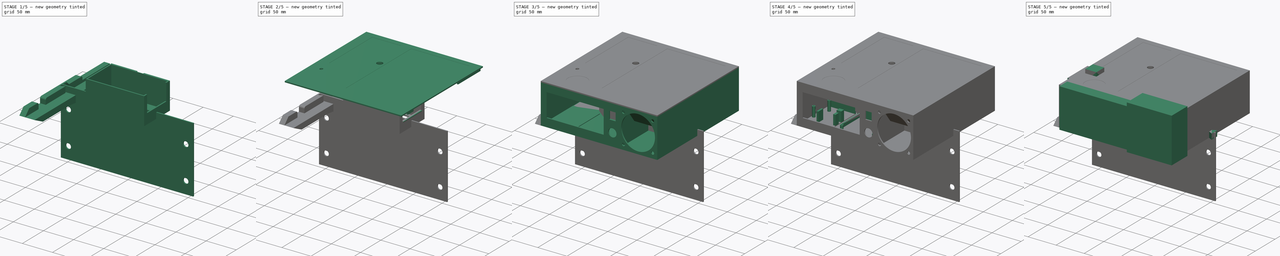
[diagram: build sequence overview — one tinted view per stage of 5, left to right]
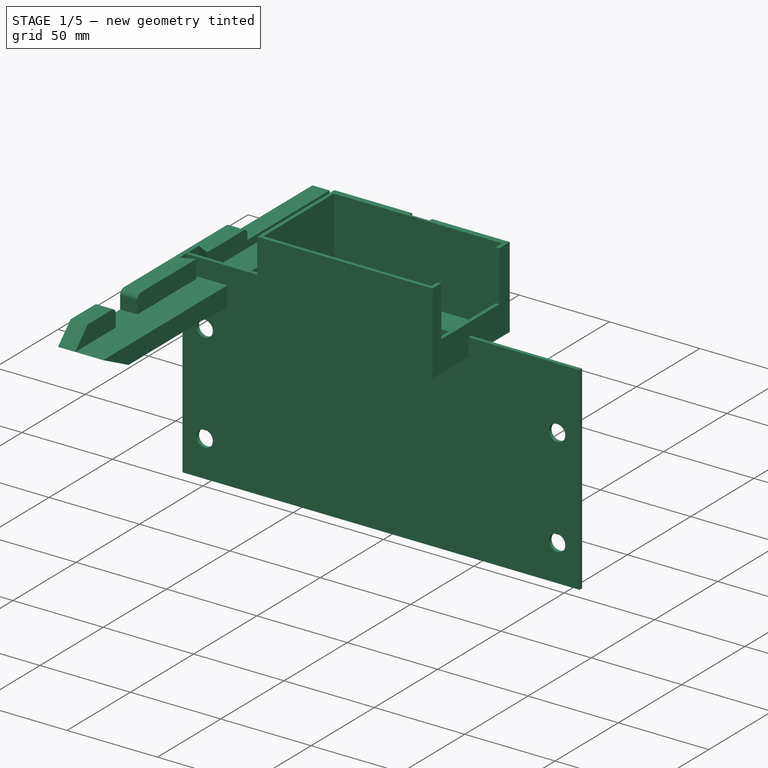
[diagram: stage 1 of 5 — iso view after this stage's code; geometry added in this stage tinted green]
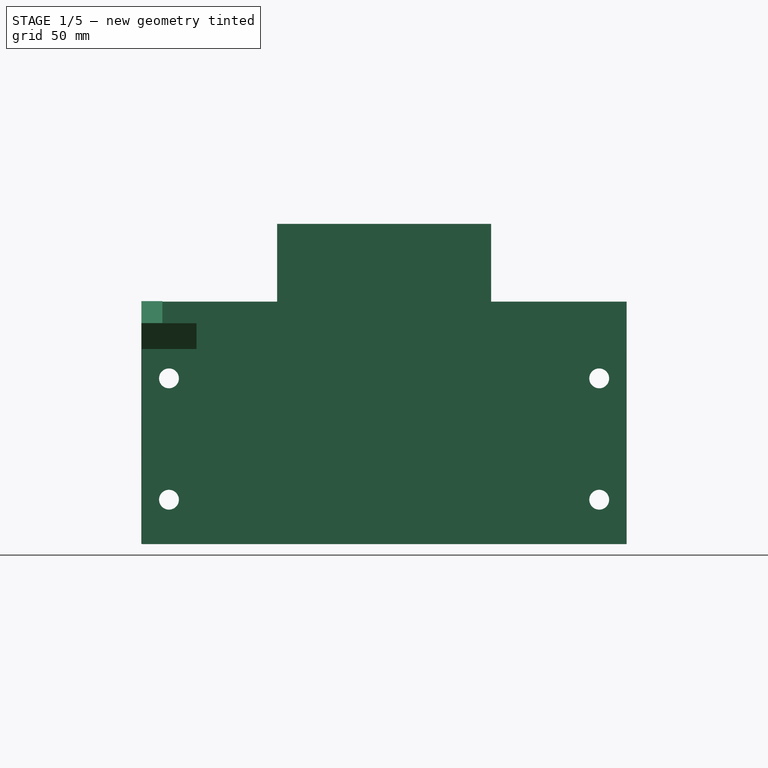
[diagram: stage 1 of 5 — front view after this stage's code; geometry added in this stage tinted green]
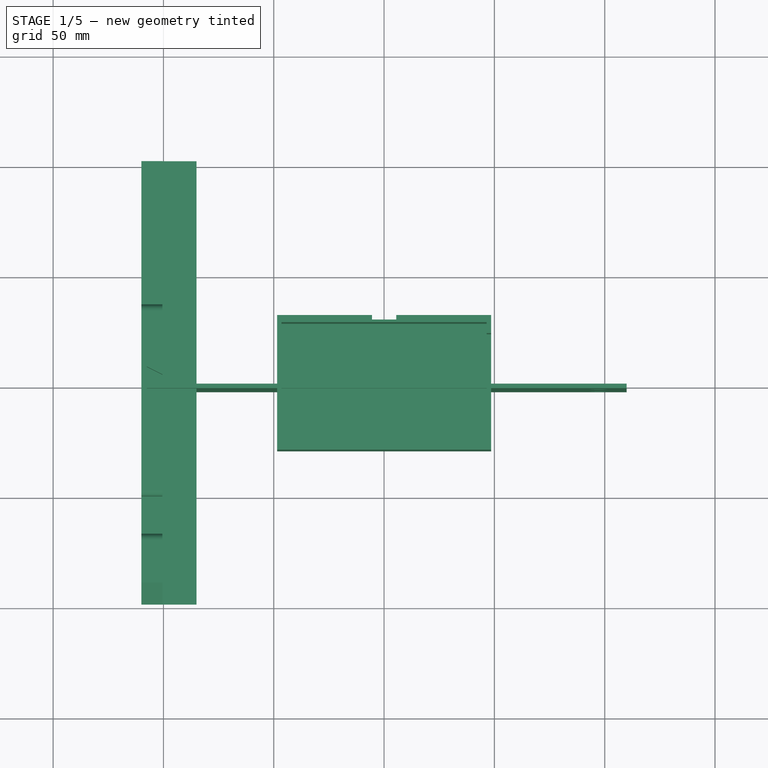
[diagram: stage 1 of 5 — top view after this stage's code; geometry added in this stage tinted green]
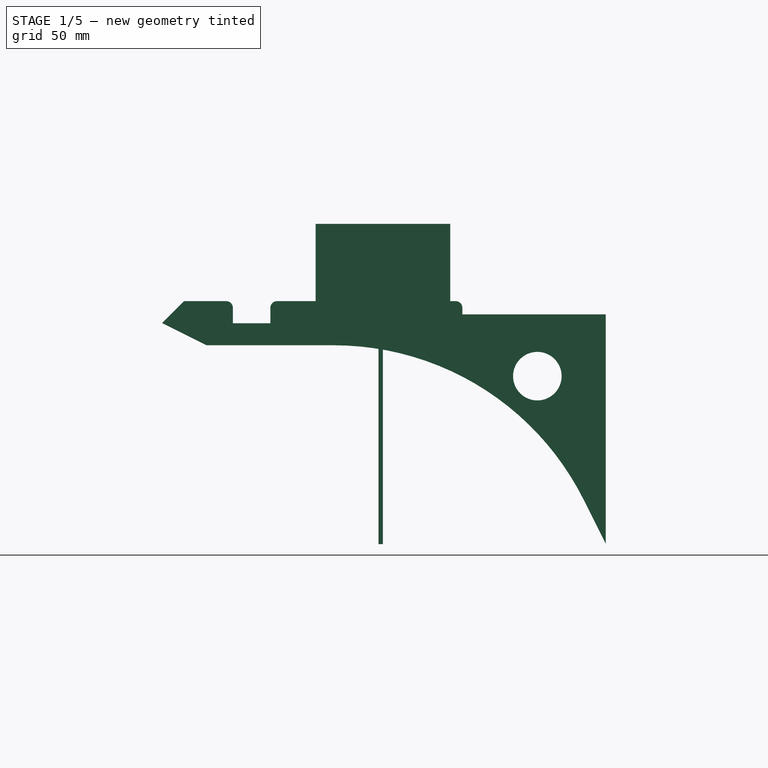
[diagram: stage 1 of 5 — right view after this stage's code; geometry added in this stage tinted green]
FCSTD DOCUMENT  (FreeCAD 0.21R33694 (Git))
Label: pantry_box
License: All rights reserved
LicenseURL: http://en.wikipedia.org/wiki/All_rights_reserved
objects: Sketcher::SketchObject×67, PartDesign::Pad×34, PartDesign::Pocket×33, Part::Box×7, PartDesign::Body×7, PartDesign::Chamfer×5, PartDesign::Fillet×4, PartDesign::LinearPattern×1, Part::Mirroring×1, PartDesign::FeatureBase×1, App::Link×1, TechDraw::DrawSVGTemplate×1, TechDraw::DrawViewPart×1, TechDraw::DrawPage×1
note: 236 computed .brp shape members not serialized (recipe doc carries the construction recipe); baked Part::Feature solids carry a one-line shape summary decoded from their .brp

FEATURE [PartDesign::Body] Body  label="box"
  Group = -> [Sketch,Pad,Sketch001,Pad001,Sketch002,Pad002,Sketch003,Pocket,Sketch004,Pad003,Sketch005,Pocket001,Sketch006,Pad004,Sketch007,Pad005,Sketch008,Pad006,Sketch009,Pad007,Sketch010,Pocket002,LinearPattern,Sketch042,Pad024,Sketch043,Pocket010,Sketch044,Pad025,Sketch046,Pocket011,Sketch047,Pad026,Sketch048,Pocket012,Sketch049,Pocket013,Sketch051,Pocket014,Sketch052,Pad027,Sketch053,Pad028,Sketch054,+26 more]
  Origin = -> Origin
  Tip = -> Pad036
FEATURE [Sketcher::SketchObject] Sketch072
  FullyConstrained = true
  MapMode = 5
  Placement = pos=(0,0,0) rot=(0.57735,0.57735,0.57735;2.0944rad)
  Support = -> [YZ_Plane003]
  sketch-geometry (6):
    g0: LineSegment StartX=-100 StartY=0 StartZ=0 EndX=101 EndY=0 EndZ=0
    g1: LineSegment StartX=101 StartY=0 StartZ=0 EndX=101 EndY=-100 EndZ=0
    g2: LineSegment StartX=101 StartY=-100 StartZ=0 EndX=91 EndY=-80 EndZ=0
    g3: LineSegment StartX=-100 StartY=0 StartZ=0 EndX=-80 EndY=-10 EndZ=0
    g4: LineSegment StartX=-80 StartY=-10 StartZ=0 EndX=-22.2624 EndY=-10 EndZ=0
    g5: ArcOfCircle CenterX=-22.2624 CenterY=-136.631 CenterZ=0 NormalX=0 NormalY=0 NormalZ=1 AngleXU=0 Radius=126.631 StartAngle=0.463648 EndAngle=1.5708
  constraints (19):
    c: PointOnObject(g0,g-1)
    c: Coincident(g0,g1)
    c: Vertical(g1)
    c: Coincident(g2,g1)
    c: Coincident(g3,g0)
    c: Coincident(g4,g3)
    c: Horizontal(g4)
    c: DistanceY(g1,g1) = 100
    c: DistanceY(g3,g0) = 10
    c: DistanceX(g0,g3) = 20
    c: DistanceY(g1,g2) = 20
    c: DistanceX(g2,g1) = 10
    c: Coincident(g5,g4)
    c: Coincident(g5,g2)
    c: Tangent(g2,g5)
    c: Tangent(g4,g5)
    c: Horizontal(g0)
    c: DistanceX(g0,g0) = 201
    c: DistanceX(g0,g-1) = 100
FEATURE [PartDesign::Pad] Pad037
  Direction = (1,1,1)
  Length = 25
  Length2 = 100
  Placement = pos=(0,0,0) rot=(0.57735,0.57735,0.57735;2.0944rad)
  Profile = -> Sketch072
  Reversed = true
  Type = 0
FEATURE [Sketcher::SketchObject] Sketch073
  ExternalGeometry = -> [Pad037]
  FullyConstrained = true
  MapMode = 5
  Placement = pos=(0,0,4e-16) rot=(0,0,-1;1.5708rad)
  Support = -> [Pad037]
  sketch-geometry (12):
    g0: LineSegment StartX=-101 StartY=0 StartZ=0 EndX=100 EndY=0 EndZ=0
    g1: LineSegment StartX=100 StartY=0 StartZ=0 EndX=100 EndY=-9.5 EndZ=0
    g2: LineSegment StartX=100 StartY=-9.5 StartZ=0 EndX=4.25 EndY=-9.5 EndZ=0
    g3: LineSegment StartX=4.25 StartY=-9.5 StartZ=0 EndX=7.75 EndY=-2.5 EndZ=0
    g4: LineSegment StartX=7.75 StartY=-2.5 StartZ=0 EndX=-7.75 EndY=-2.5 EndZ=0
    g5: LineSegment StartX=-7.75 StartY=-2.5 StartZ=0 EndX=-4.25 EndY=-9.5 EndZ=0
    g6: LineSegment StartX=-4.25 StartY=-9.5 StartZ=0 EndX=-101 EndY=-9.5 EndZ=0
    g7: LineSegment StartX=-101 StartY=-9.5 StartZ=0 EndX=-101 EndY=0 EndZ=0
    g8: LineSegment StartX=-4 StartY=-10 StartZ=0 EndX=4 EndY=-10 EndZ=0
    g9: LineSegment StartX=4 StartY=-10 StartZ=0 EndX=7.5 EndY=-3 EndZ=0
    g10: LineSegment StartX=7.5 StartY=-3 StartZ=0 EndX=-7.5 EndY=-3 EndZ=0
    g11: LineSegment StartX=-7.5 StartY=-3 StartZ=0 EndX=-4 EndY=-10 EndZ=0
  constraints (32):
    c: Coincident(g-4,g0)
    c: Coincident(g0,g-3)
    c: Coincident(g0,g1)
    c: PointOnObject(g1,g-3)
    c: Coincident(g1,g2)
    c: Horizontal(g2)
    c: Coincident(g2,g3)
    c: Coincident(g3,g4)
    c: Coincident(g4,g5)
    c: Coincident(g5,g6)
    c: PointOnObject(g6,g-4)
    c: Horizontal(g6)
    c: Coincident(g6,g7)
    c: Coincident(g7,g0)
    c: Equal(g1,g7)
    c: Equal(g3,g5)
    c: Symmetric(g4,g3,g-2)
    c: Horizontal(g8)
    c: Coincident(g8,g9)
    c: Coincident(g9,g10)
    c: Coincident(g10,g11)
    c: Coincident(g11,g8)
    c: Symmetric(g10,g9,g-2)
    c: Equal(g9,g11)
    c: DistanceX(g8,g8) = 8
    c: DistanceX(g10,g10) = 15
    c: DistanceY(g9,g-1) = 3
    c: DistanceY(g8,g9) = 7
    c: Parallel(g9,g3)
    c: PointOnObject(g2,g9)
    c: DistanceY(g8,g2) = 0.5
    c: Equal(g3,g9)
FEATURE [PartDesign::Pad] Pad038
  BaseFeature = -> Pad037
  Direction = (1,1,1)
  Length = 10
  Length2 = 100
  Placement = pos=(0,0,0) rot=(0.57735,0.57735,0.57735;2.0944rad)
  Profile = -> Sketch073
  Type = 0
FEATURE [Sketcher::SketchObject] Sketch074
  ExternalGeometry = -> [Pad038]
  FullyConstrained = true
  MapMode = 5
  Placement = pos=(4.44e-14,101,-2.22e-14) rot=(0.57735,0.57735,0.57735;4.18879rad)
  Support = -> [Pad038]
  sketch-geometry (4):
    g0: LineSegment StartX=-25 StartY=0 StartZ=0 EndX=-25 EndY=-25 EndZ=0
    g1: LineSegment StartX=-80 StartY=0 StartZ=0 EndX=-80 EndY=-25 EndZ=0
    g2: Circle CenterX=-25 CenterY=-12.5 CenterZ=0 NormalX=0 NormalY=0 NormalZ=1 AngleXU=0 Radius=4.5
    g3: Circle CenterX=-80 CenterY=-12.5 CenterZ=0 NormalX=0 NormalY=0 NormalZ=1 AngleXU=0 Radius=4.5
  constraints (12):
    c: PointOnObject(g0,g-1)
    c: PointOnObject(g0,g-3)
    c: Vertical(g0)
    c: PointOnObject(g1,g-1)
    c: PointOnObject(g1,g-3)
    c: Vertical(g1)
    c: Diameter(g2) = 9
    c: Diameter(g3) = 9
    c: Symmetric(g0,g0,g2)
    c: Symmetric(g1,g1,g3)
    c: DistanceX(g0,g-1) = 25
    c: DistanceX(g1,g0) = 55
FEATURE [PartDesign::Pocket] Pocket025
  BaseFeature = -> Pad038
  Direction = (1,1,1)
  Length = 5
  Length2 = 100
  Placement = pos=(0,0,0) rot=(0.57735,0.57735,0.57735;2.0944rad)
  Profile = -> Sketch074
  Type = 1
FEATURE [Sketcher::SketchObject] Sketch075
  AttachmentOffset = pos=(0,0,-5) rot=(0,0,1;0rad)
  ExternalGeometry = -> [Pocket025]
  FullyConstrained = true
  MapMode = 5
  Placement = pos=(4.28e-14,96,-2.17e-14) rot=(0.57735,0.57735,0.57735;4.18879rad)
  Support = -> [Pocket025]
  sketch-geometry (2):
    g0: Circle CenterX=-80 CenterY=-12.5 CenterZ=0 NormalX=0 NormalY=0 NormalZ=1 AngleXU=0 Radius=10
    g1: Circle CenterX=-25 CenterY=-12.5 CenterZ=0 NormalX=0 NormalY=0 NormalZ=1 AngleXU=0 Radius=10
  constraints (4):
    c: Coincident(g0,g-3)
    c: Coincident(g1,g-4)
    c: Diameter(g1) = 20
    c: Diameter(g0) = 20
FEATURE [PartDesign::Pocket] Pocket026
  BaseFeature = -> Pocket025
  Direction = (1,1,1)
  Length = 5
  Length2 = 100
  Placement = pos=(0,0,0) rot=(0.57735,0.57735,0.57735;2.0944rad)
  Profile = -> Sketch075
  Type = 1
FEATURE [Sketcher::SketchObject] Sketch076
  FullyConstrained = true
  MapMode = 5
  Placement = pos=(1e-16,0,0) rot=(0.57735,0.57735,0.57735;2.0944rad)
  Support = -> [Pocket026]
  sketch-geometry (1):
    g0: Circle CenterX=70 CenterY=-24 CenterZ=0 NormalX=0 NormalY=0 NormalZ=1 AngleXU=0 Radius=11
  constraints (3):
    c: Diameter(g0) = 22
    c: DistanceX(g-1,g0) = 70
    c: DistanceY(g0,g-1) = 24
FEATURE [PartDesign::Pocket] Pocket027
  BaseFeature = -> Pocket026
  Direction = (1,1,1)
  Length = 5
  Length2 = 100
  Placement = pos=(0,0,0) rot=(0.57735,0.57735,0.57735;2.0944rad)
  Profile = -> Sketch076
  Type = 1
FEATURE [PartDesign::Chamfer] Chamfer005
  Angle = 45
  Base = -> Pocket027 [Edge35]
  BaseFeature = -> Pocket027
  ChamferType = 0
  FlipDirection = false
  Placement = pos=(0,0,0) rot=(0.57735,0.57735,0.57735;2.0944rad)
  Size = 9.9
  Size2 = 1
  SupportTransform = false
  UseAllEdges = false
FEATURE [PartDesign::Body] Body003  label="leg-right-base"
  Group = -> [Sketch072,Pad037,Sketch073,Pad038,Sketch074,Pocket025,Sketch075,Pocket026,Sketch076,Pocket027,Chamfer005]
  Origin = -> Origin003
  Placement = pos=(110,0,0) rot=(0,0,1;0rad)
  Tip = -> Chamfer005
FEATURE [Part::Mirroring] Part__Mirroring  label="leg-right-mirror"
  Base = (0,0,0)
  Normal = (1,0,0)
  Source = -> Body003
FEATURE [PartDesign::FeatureBase] BaseFeature
  BaseFeature = -> Part__Mirroring
FEATURE [Sketcher::SketchObject] Sketch077
  ExternalGeometry = -> [BaseFeature]
  FullyConstrained = true
  MapMode = 5
  Placement = pos=(-110,-2.42e-14,9.13e-14) rot=(0.57735,-0.57735,-0.57735;2.0944rad)
  Support = -> [BaseFeature]
  sketch-geometry (4):
    g0: LineSegment StartX=51 StartY=15 StartZ=0 EndX=68 EndY=15 EndZ=0
    g1: LineSegment StartX=68 StartY=15 StartZ=0 EndX=68 EndY=0 EndZ=0
    g2: LineSegment StartX=68 StartY=0 StartZ=0 EndX=51 EndY=0 EndZ=0
    g3: LineSegment StartX=51 StartY=0 StartZ=0 EndX=51 EndY=15 EndZ=0
  constraints (12):
    c: Coincident(g0,g1)
    c: Coincident(g1,g2)
    c: Coincident(g2,g3)
    c: Coincident(g3,g0)
    c: Horizontal(g0)
    c: Horizontal(g2)
    c: Vertical(g1)
    c: Vertical(g3)
    c: PointOnObject(g1,g-1)
    c: DistanceX(g1,g-3) = 32
    c: DistanceX(g2,g2) = 17
    c: DistanceY(g3,g3) = 15
FEATURE [PartDesign::Pocket] Pocket028
  BaseFeature = -> BaseFeature
  Direction = (1,1,1)
  Length = 12
  Length2 = 100
  Profile = -> Sketch077
  Type = 0
FEATURE [App::Link] Link  label="leg-right"
  LinkPlacement = pos=(110,0,0) rot=(0,0,1;0rad)
  LinkedObject = -> Body003
  Placement = pos=(110,0,0) rot=(0,0,1;0rad)
FEATURE [PartDesign::Fillet] Fillet
  Base = -> Pocket028 [Edge61,Edge22]
  BaseFeature = -> Pocket028
  Radius = 3
  SupportTransform = false
  UseAllEdges = false
FEATURE [PartDesign::Body] Body002  label="cup"
  Group = -> [Sketch021,Pad014,Sketch024,Pocket006,Sketch026,Pad016,Sketch027,Pocket007,Sketch028,Pocket008,Sketch029,Pocket009,Sketch038,Pad020,Chamfer,Sketch055,Pad030,Chamfer003,Sketch065,Pocket019,Sketch066,Pocket020,Sketch081,Pad041,Sketch082,Pocket030,Fillet001]
  Origin = -> Origin002
  Tip = -> Fillet001
FEATURE [Sketcher::SketchObject] Sketch086
  FullyConstrained = true
  MapMode = 5
  Support = -> [XY_Plane006]
  sketch-geometry (4):
    g0: LineSegment StartX=-48.5 StartY=30.5 StartZ=0 EndX=48.5 EndY=30.5 EndZ=0
    g1: LineSegment StartX=48.5 StartY=30.5 StartZ=0 EndX=48.5 EndY=-30.5 EndZ=0
    g2: LineSegment StartX=48.5 StartY=-30.5 StartZ=0 EndX=-48.5 EndY=-30.5 EndZ=0
    g3: LineSegment StartX=-48.5 StartY=-30.5 StartZ=0 EndX=-48.5 EndY=30.5 EndZ=0
  constraints (11):
    c: Coincident(g0,g1)
    c: Coincident(g1,g2)
    c: Coincident(g2,g3)
    c: Coincident(g3,g0)
    c: Horizontal(g0)
    c: Horizontal(g2)
    c: Vertical(g1)
    c: Vertical(g3)
    c: Symmetric(g0,g1,g-1)
    c: DistanceX(g0,g0) = 97
    c: DistanceY(g1,g1) = 61
FEATURE [PartDesign::Pad] Pad044
  Direction = (1,1,1)
  Length = 2
  Length2 = 100
  Profile = -> Sketch086
  Type = 0
FEATURE [Sketcher::SketchObject] Sketch087
  ExternalGeometry = -> [Pad044]
  FullyConstrained = true
  MapMode = 5
  Placement = pos=(0,0,2) rot=(0,0,1;0rad)
  Support = -> [Pad044]
  sketch-geometry (8):
    g0: LineSegment StartX=-48.5 StartY=30.5 StartZ=0 EndX=48.5 EndY=30.5 EndZ=0
    g1: LineSegment StartX=48.5 StartY=30.5 StartZ=0 EndX=48.5 EndY=-30.5 EndZ=0
    g2: LineSegment StartX=48.5 StartY=-30.5 StartZ=0 EndX=-48.5 EndY=-30.5 EndZ=0
    g3: LineSegment StartX=-48.5 StartY=-30.5 StartZ=0 EndX=-48.5 EndY=30.5 EndZ=0
    g4: LineSegment StartX=-46.5 StartY=27.3 StartZ=0 EndX=46.5 EndY=27.3 EndZ=0
    g5: LineSegment StartX=46.5 StartY=27.3 StartZ=0 EndX=46.5 EndY=-28.5 EndZ=0
    g6: LineSegment StartX=46.5 StartY=-28.5 StartZ=0 EndX=-46.5 EndY=-28.5 EndZ=0
    g7: LineSegment StartX=-46.5 StartY=-28.5 StartZ=0 EndX=-46.5 EndY=27.3 EndZ=0
  constraints (22):
    c: Coincident(g0,g1)
    c: Coincident(g1,g2)
    c: Coincident(g2,g3)
    c: Coincident(g3,g0)
    c: Horizontal(g0)
    c: Horizontal(g2)
    c: Vertical(g1)
    c: Vertical(g3)
    c: Coincident(g0,g-3)
    c: Coincident(g1,g-4)
    c: Coincident(g4,g5)
    c: Coincident(g5,g6)
    c: Coincident(g6,g7)
    c: Coincident(g7,g4)
    c: Horizontal(g4)
    c: Horizontal(g6)
    c: Vertical(g5)
    c: Vertical(g7)
    c: DistanceX(g5,g1) = 2
    c: DistanceY(g1,g5) = 2
    c: DistanceY(g4,g0) = 3.2
    c: DistanceX(g0,g4) = 2
FEATURE [PartDesign::Pad] Pad045
  BaseFeature = -> Pad044
  Direction = (1,1,1)
  Length = 43
  Length2 = 100
  Profile = -> Sketch087
  Type = 0
FEATURE [Sketcher::SketchObject] Sketch088
  ExternalGeometry = -> [Pad045]
  FullyConstrained = true
  MapMode = 5
  Placement = pos=(0,0,45) rot=(0,0,1;0rad)
  Support = -> [Pad045]
  sketch-geometry (4):
    g0: LineSegment StartX=-5.5 StartY=30.5 StartZ=0 EndX=5.5 EndY=30.5 EndZ=0
    g1: LineSegment StartX=5.5 StartY=30.5 StartZ=0 EndX=5.5 EndY=28.5 EndZ=0
    g2: LineSegment StartX=5.5 StartY=28.5 StartZ=0 EndX=-5.5 EndY=28.5 EndZ=0
    g3: LineSegment StartX=-5.5 StartY=28.5 StartZ=0 EndX=-5.5 EndY=30.5 EndZ=0
  constraints (11):
    c: Coincident(g0,g1)
    c: Coincident(g1,g2)
    c: Coincident(g2,g3)
    c: Coincident(g3,g0)
    c: Horizontal(g2)
    c: Vertical(g1)
    c: Vertical(g3)
    c: PointOnObject(g0,g-3)
    c: Symmetric(g0,g0,g-2)
    c: DistanceX(g0,g0) = 11
    c: DistanceY(g1,g1) = 2
FEATURE [PartDesign::Pocket] Pocket032
  BaseFeature = -> Pad045
  Direction = (1,1,1)
  Length = 5
  Length2 = 100
  Profile = -> Sketch088
  Type = 1
FEATURE [Sketcher::SketchObject] Sketch089
  ExternalGeometry = -> [Pocket032]
  FullyConstrained = true
  MapMode = 5
  Placement = pos=(46.5,0,0) rot=(0.57735,-0.57735,-0.57735;2.0944rad)
  Support = -> [Pocket032]
  sketch-geometry (4):
    g0: LineSegment StartX=-22.3 StartY=45 StartZ=0 EndX=23.5 EndY=45 EndZ=0
    g1: LineSegment StartX=23.5 StartY=45 StartZ=0 EndX=23.5 EndY=17 EndZ=0
    g2: LineSegment StartX=23.5 StartY=17 StartZ=0 EndX=-22.3 EndY=17 EndZ=0
    g3: LineSegment StartX=-22.3 StartY=17 StartZ=0 EndX=-22.3 EndY=45 EndZ=0
  constraints (12):
    c: Coincident(g0,g1)
    c: Coincident(g1,g2)
    c: Coincident(g2,g3)
    c: Coincident(g3,g0)
    c: Horizontal(g0)
    c: Horizontal(g2)
    c: Vertical(g1)
    c: Vertical(g3)
    c: DistanceY(g1,g1) = 28
    c: PointOnObject(g0,g-3)
    c: DistanceX(g-3,g0) = 5
    c: DistanceX(g0,g-3) = 5
FEATURE [PartDesign::Pocket] Pocket033
  BaseFeature = -> Pocket032
  Direction = (1,1,1)
  Length = 5
  Length2 = 100
  Profile = -> Sketch089
  Type = 0
FEATURE [PartDesign::Body] Body006  label="cilicogel-box"
  Group = -> [Sketch086,Pad044,Sketch087,Pad045,Sketch088,Pocket032,Sketch089,Pocket033,Sketch090,Pocket034,Sketch091,Pad046,Sketch092,Pocket035,Sketch093,Pocket036,Chamfer007,Sketch094,Pad047,Sketch095,Pocket037,Fillet002]
  Origin = -> Origin006
  Placement = pos=(67,-15,22) rot=(0,0,1;1.5708rad)
  Tip = -> Fillet002
FEATURE [Sketcher::SketchObject] Sketch096
  ExternalGeometry = -> [Fillet]
  FullyConstrained = true
  MapMode = 5
  Placement = pos=(-110,-2.42e-14,9.13e-14) rot=(0.57735,-0.57735,-0.57735;2.0944rad)
  Support = -> [Fillet]
  sketch-geometry (4):
    g0: LineSegment StartX=-101 StartY=10 StartZ=0 EndX=-36 EndY=10 EndZ=0
    g1: LineSegment StartX=-36 StartY=10 StartZ=0 EndX=-36 EndY=4 EndZ=0
    g2: LineSegment StartX=-36 StartY=4 StartZ=0 EndX=-101 EndY=4 EndZ=0
    g3: LineSegment StartX=-101 StartY=4 StartZ=0 EndX=-101 EndY=10 EndZ=0
  constraints (11):
    c: Coincident(g0,g1)
    c: Coincident(g1,g2)
    c: Coincident(g2,g3)
    c: Coincident(g3,g0)
    c: Horizontal(g0)
    c: Horizontal(g2)
    c: Vertical(g1)
    c: Vertical(g3)
    c: Coincident(g0,g-4)
    c: DistanceY(g1,g1) = 6
    c: DistanceX(g0,g0) = 65
FEATURE [PartDesign::Pocket] Pocket038
  BaseFeature = -> Fillet
  Direction = (1,1,1)
  Length = 5
  Length2 = 100
  Profile = -> Sketch096
  Type = 1
FEATURE [PartDesign::Fillet] Fillet003
  Base = -> Pocket038 [Edge69]
  BaseFeature = -> Pocket038
  Radius = 3
  SupportTransform = false
  UseAllEdges = false
FEATURE [PartDesign::Body] Body004  label="leg-left"
  BaseFeature = -> Part__Mirroring
  Group = -> [BaseFeature,Sketch077,Pocket028,Fillet,Sketch096,Pocket038,Fillet003]
  Origin = -> Origin004
  Tip = -> Fillet003
FEATURE [Sketcher::SketchObject] Sketch097
  FullyConstrained = false
  MapMode = 5
  Placement = pos=(0,0,0) rot=(1,0,0;1.5708rad)
  Support = -> [XZ_Plane007]
  sketch-geometry (12):
    g0: Circle CenterX=97.5 CenterY=-25 CenterZ=0 NormalX=0 NormalY=0 NormalZ=1 AngleXU=0 Radius=4.5
    g1: Circle CenterX=97.5 CenterY=-80 CenterZ=0 NormalX=0 NormalY=0 NormalZ=1 AngleXU=0 Radius=4.5
    g2: Circle CenterX=-97.5 CenterY=-25 CenterZ=0 NormalX=0 NormalY=0 NormalZ=1 AngleXU=0 Radius=4.5
    g3: Circle CenterX=-97.5 CenterY=-80 CenterZ=0 NormalX=0 NormalY=0 NormalZ=1 AngleXU=0 Radius=4.5
    g4: LineSegment StartX=97.5 StartY=-25 StartZ=0 EndX=97.5 EndY=-80 EndZ=0
    g5: LineSegment StartX=97.5 StartY=-25 StartZ=0 EndX=-97.5 EndY=-25 EndZ=0
    g6: LineSegment StartX=97.5 StartY=-80 StartZ=0 EndX=-97.5 EndY=-80 EndZ=0
    g7: LineSegment StartX=-97.5 StartY=-80 StartZ=0 EndX=-97.5 EndY=-25 EndZ=0
    g8: LineSegment StartX=109.922 StartY=9.75716 StartZ=0 EndX=-109.807 EndY=9.75716 EndZ=0
    g9: LineSegment StartX=-109.807 StartY=9.75716 StartZ=0 EndX=-109.807 EndY=-100.108 EndZ=0
    g10: LineSegment StartX=-109.807 StartY=-100.108 StartZ=0 EndX=109.922 EndY=-100.108 EndZ=0
    g11: LineSegment StartX=109.922 StartY=-100.108 StartZ=0 EndX=109.922 EndY=9.75716 EndZ=0
  constraints (28):
    c: Equal(g0,g1)
    c: Equal(g0,g2)
    c: Equal(g2,g3)
    c: Diameter(g0) = 9
    c: DistanceX(g-1,g0) = 97.5
    c: DistanceY(g0,g-1) = 25
    c: DistanceY(g1,g0) = 55
    c: Coincident(g4,g0)
    c: Coincident(g4,g1)
    c: Vertical(g4)
    c: Coincident(g5,g0)
    c: Coincident(g5,g2)
    c: Horizontal(g5)
    c: Coincident(g6,g1)
    c: Coincident(g6,g3)
    c: Horizontal(g6)
    c: Coincident(g7,g3)
    c: Coincident(g7,g2)
    c: Vertical(g7)
    c: DistanceX(g2,g-1) = 97.5
    c: Coincident(g8,g9)
    c: Coincident(g9,g10)
    c: Coincident(g10,g11)
    c: Coincident(g11,g8)
    c: Horizontal(g8)
    c: Horizontal(g10)
    c: Vertical(g9)
    c: Vertical(g11)
FEATURE [PartDesign::Pad] Pad048
  Direction = (0,-1,2e-16)
  Length = 2
  Length2 = 10
  Placement = pos=(0,0,0) rot=(1,0,0;1.5708rad)
  Profile = -> Sketch097
  ReferenceAxis = -> Sketch097 [N_Axis]
  Type = 0
FEATURE [PartDesign::Body] Body007  label="drill-mask"
  Group = -> [Sketch097,Pad048]
  Origin = -> Origin007
  Placement = pos=(0,103,0) rot=(0,0,1;0rad)
  Tip = -> Pad048
FEATURE [TechDraw::DrawSVGTemplate] Template
  Height = 210
  Orientation = 1
  Template = <path>
  Width = 297
FEATURE [TechDraw::DrawViewPart] View
  CoarseView = false
  Direction = (0,1,0)
  Focus = 100
  HardHidden = false
  IsoCount = 0
  IsoHidden = false
  IsoVisible = false
  LockPosition = false
  Perspective = false
  Rotation = 0
  ScaleType = 0
  ScrubCount = 0
  SeamHidden = false
  SeamVisible = false
  SmoothHidden = false
  SmoothVisible = true
  Source = -> [Body007]
  X = 148.5
  XDirection = (-1,0,0)
  Y = 105
FEATURE [TechDraw::DrawPage] Page
  KeepUpdated = true
  NextBalloonIndex = 1
  ProjectionType = 0
  Template = -> Template
  Views = -> [View]
note: 1 file-system path scrubbed to <path> (originals preserved in the JSON sidecar)
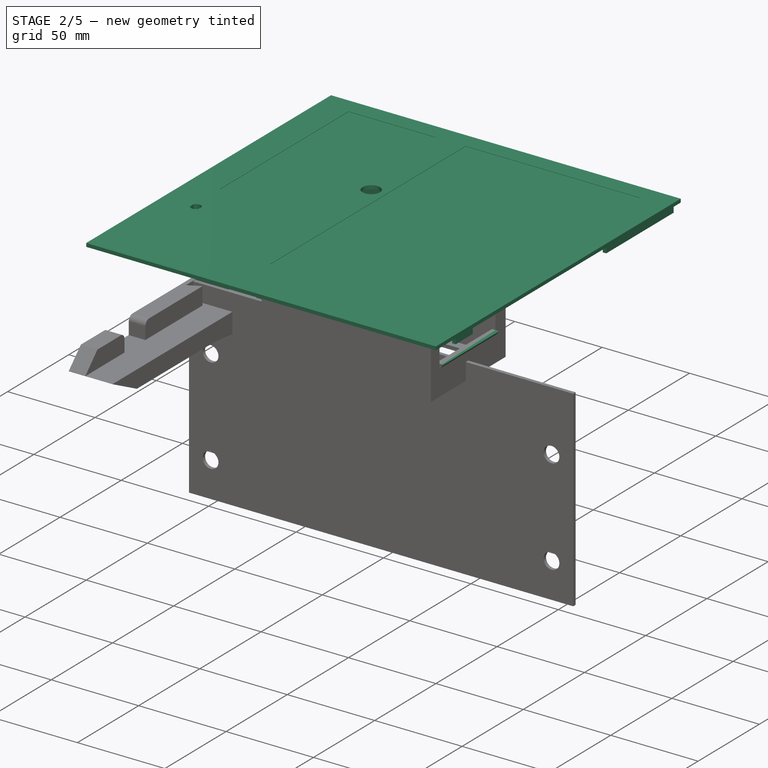
[diagram: stage 2 of 5 — iso view after this stage's code; geometry added in this stage tinted green]
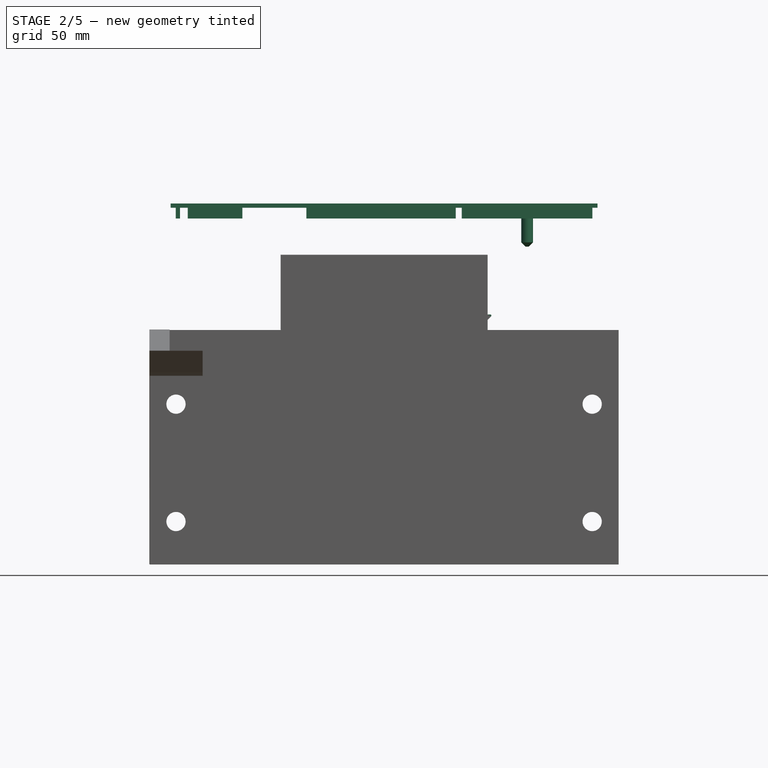
[diagram: stage 2 of 5 — front view after this stage's code; geometry added in this stage tinted green]
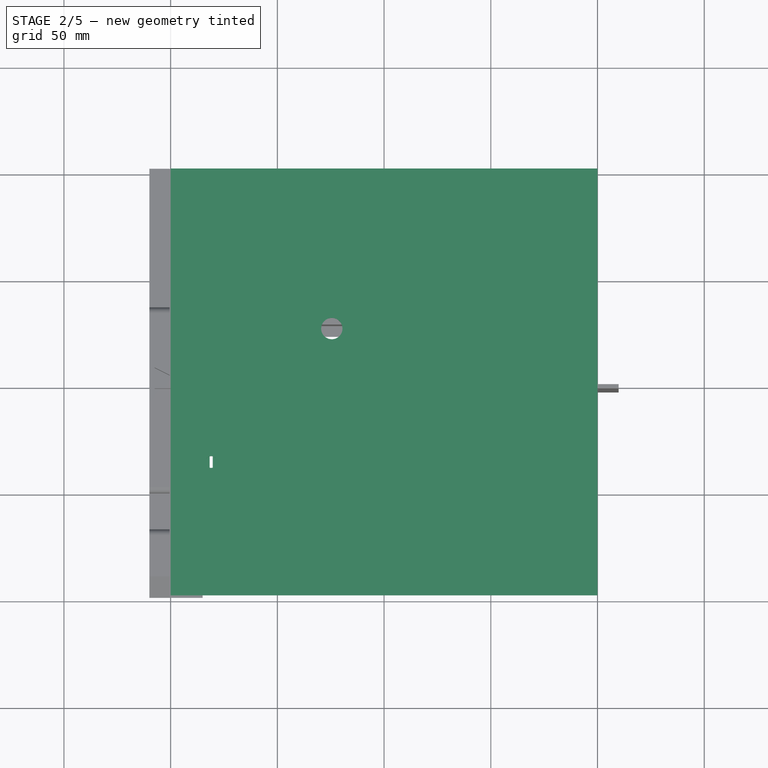
[diagram: stage 2 of 5 — top view after this stage's code; geometry added in this stage tinted green]
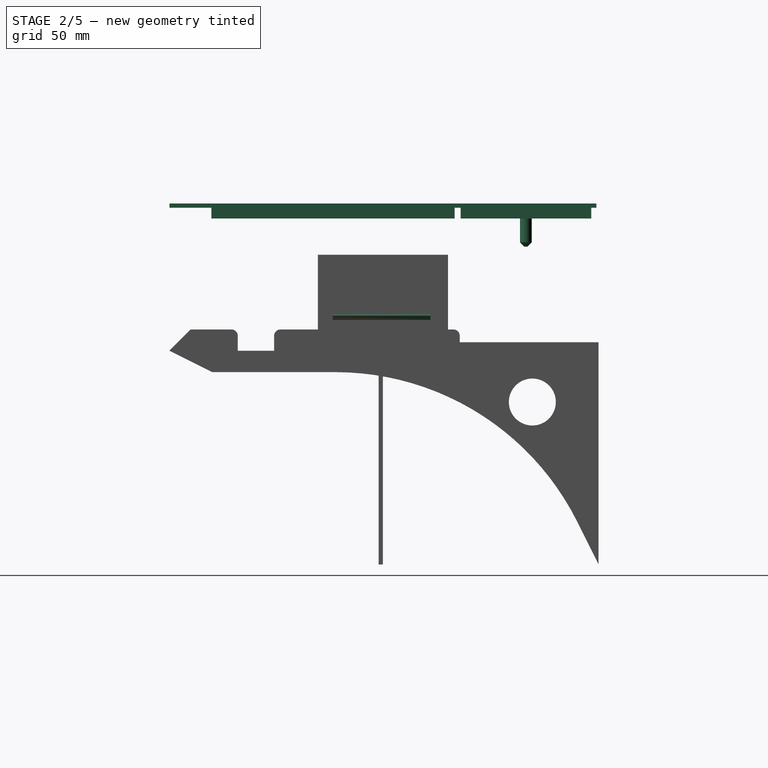
[diagram: stage 2 of 5 — right view after this stage's code; geometry added in this stage tinted green]
FEATURE [Sketcher::SketchObject] Sketch021
  AttachmentOffset = pos=(0,0,67) rot=(0,0,1;0rad)
  FullyConstrained = true
  MapMode = 5
  Placement = pos=(0,0,67) rot=(0,0,1;0rad)
  Support = -> [XY_Plane002]
  sketch-geometry (4):
    g0: LineSegment StartX=-100 StartY=100 StartZ=0 EndX=100 EndY=100 EndZ=0
    g1: LineSegment StartX=100 StartY=100 StartZ=0 EndX=100 EndY=-100 EndZ=0
    g2: LineSegment StartX=100 StartY=-100 StartZ=0 EndX=-100 EndY=-100 EndZ=0
    g3: LineSegment StartX=-100 StartY=-100 StartZ=0 EndX=-100 EndY=100 EndZ=0
  constraints (11):
    c: Coincident(g0,g1)
    c: Coincident(g1,g2)
    c: Coincident(g2,g3)
    c: Coincident(g3,g0)
    c: Horizontal(g0)
    c: Horizontal(g2)
    c: Vertical(g1)
    c: Vertical(g3)
    c: Symmetric(g1,g0,g-1)
    c: DistanceX(g0,g0) = 200
    c: DistanceY(g1,g1) = 200
FEATURE [PartDesign::Pad] Pad014
  Direction = (1,1,1)
  Length = 2
  Length2 = 100
  Profile = -> Sketch021
  Type = 0
FEATURE [Sketcher::SketchObject] Sketch024
  ExternalGeometry = -> [Pad014]
  FullyConstrained = true
  MapMode = 5
  Placement = pos=(0,0,69) rot=(0,0,1;0rad)
  Support = -> [Pad014]
  sketch-geometry (8):
    g0: LineSegment StartX=-16 StartY=90 StartZ=0 EndX=84 EndY=90 EndZ=0
    g1: LineSegment StartX=84 StartY=90 StartZ=0 EndX=84 EndY=-70 EndZ=0
    g2: LineSegment StartX=84 StartY=-70 StartZ=0 EndX=-16 EndY=-70 EndZ=0
    g3: LineSegment StartX=-16 StartY=-70 StartZ=0 EndX=-16 EndY=90 EndZ=0
    g4: LineSegment StartX=-83 StartY=90 StartZ=0 EndX=-33 EndY=90 EndZ=0
    g5: LineSegment StartX=-33 StartY=90 StartZ=0 EndX=-33 EndY=-15 EndZ=0
    g6: LineSegment StartX=-33 StartY=-15 StartZ=0 EndX=-83 EndY=-15 EndZ=0
    g7: LineSegment StartX=-83 StartY=-15 StartZ=0 EndX=-83 EndY=90 EndZ=0
  constraints (24):
    c: Coincident(g0,g1)
    c: Coincident(g1,g2)
    c: Coincident(g2,g3)
    c: Coincident(g3,g0)
    c: Horizontal(g0)
    c: Horizontal(g2)
    c: Vertical(g1)
    c: Vertical(g3)
    c: Coincident(g4,g5)
    c: Coincident(g5,g6)
    c: Coincident(g6,g7)
    c: Coincident(g7,g4)
    c: Horizontal(g4)
    c: Horizontal(g6)
    c: Vertical(g5)
    c: Vertical(g7)
    c: DistanceY(g1,g1) = 160
    c: DistanceX(g0,g0) = 100
    c: DistanceX(g0,g-3) = 16
    c: DistanceY(g0,g-3) = 10
    c: DistanceY(g5,g5) = 105
    c: DistanceX(g4,g4) = 50
    c: PointOnObject(g4,g0)
    c: DistanceX(g4,g0) = 17
FEATURE [PartDesign::Pocket] Pocket006
  BaseFeature = -> Pad014
  Direction = (1,1,1)
  Length = 0.2
  Length2 = 100
  Profile = -> Sketch024
  Type = 0
FEATURE [Sketcher::SketchObject] Sketch026
  ExternalGeometry = -> [Pocket006]
  FullyConstrained = true
  MapMode = 5
  Placement = pos=(0,0,69) rot=(0,0,1;0rad)
  Support = -> [Pocket006]
  sketch-geometry (4):
    g0: LineSegment StartX=-86 StartY=-32.5 StartZ=0 EndX=-76 EndY=-32.5 EndZ=0
    g1: LineSegment StartX=-76 StartY=-32.5 StartZ=0 EndX=-76 EndY=-42.5 EndZ=0
    g2: LineSegment StartX=-76 StartY=-42.5 StartZ=0 EndX=-86 EndY=-42.5 EndZ=0
    g3: LineSegment StartX=-86 StartY=-42.5 StartZ=0 EndX=-86 EndY=-32.5 EndZ=0
  constraints (12):
    c: Coincident(g0,g1)
    c: Coincident(g1,g2)
    c: Coincident(g2,g3)
    c: Coincident(g3,g0)
    c: Horizontal(g0)
    c: Horizontal(g2)
    c: Vertical(g1)
    c: Vertical(g3)
    c: DistanceX(g0,g0) = 10
    c: Equal(g0,g1)
    c: DistanceX(g0,g-3) = 3
    c: DistanceY(g0,g-3) = 17.5
FEATURE [PartDesign::Pad] Pad016
  BaseFeature = -> Pocket006
  Direction = (1,1,1)
  Length = 5
  Length2 = 100
  Profile = -> Sketch026
  Reversed = true
  Type = 0
FEATURE [Sketcher::SketchObject] Sketch027
  ExternalGeometry = -> [Pad016]
  FullyConstrained = true
  MapMode = 5
  Placement = pos=(0,0,69) rot=(0,0,1;0rad)
  Support = -> [Pad016]
  sketch-geometry (6):
    g0: LineSegment StartX=-83.35 StartY=-36 StartZ=0 EndX=-83.35 EndY=-39 EndZ=0
    g1: LineSegment StartX=-78.65 StartY=-36 StartZ=0 EndX=-78.65 EndY=-39 EndZ=0
    g2: ArcOfCircle CenterX=-81 CenterY=-37.5 CenterZ=0 NormalX=0 NormalY=0 NormalZ=1 AngleXU=0 Radius=2.78792 StartAngle=0.568105 EndAngle=2.57349
    g3: ArcOfCircle CenterX=-81 CenterY=-37.5 CenterZ=0 NormalX=0 NormalY=0 NormalZ=1 AngleXU=0 Radius=2.78792 StartAngle=3.7097 EndAngle=5.71508
    g4: LineSegment StartX=-81 StartY=-34.7121 StartZ=0 EndX=-76 EndY=-34.7121 EndZ=0
    g5: LineSegment StartX=-81 StartY=-40.2879 StartZ=0 EndX=-76 EndY=-40.2879 EndZ=0
  constraints (21):
    c: Vertical(g0)
    c: Vertical(g1)
    c: Equal(g0,g1)
    c: DistanceY(g0,g0) = 3
    c: DistanceX(g0,g1) = 4.7
    c: Coincident(g2,g0)
    c: Coincident(g3,g0)
    c: Coincident(g3,g2)
    c: Coincident(g2,g1)
    c: Coincident(g3,g1)
    c: Equal(g2,g3)
    c: PointOnObject(g4,g2)
    c: Horizontal(g4)
    c: Tangent(g4,g2)
    c: PointOnObject(g5,g3)
    c: Horizontal(g5)
    c: Tangent(g5,g3)
    c: DistanceX(g4,g4) = 5
    c: DistanceY(g5,g4) = 5.57584
    c: Symmetric(g-4,g-3,g2)
    c: Equal(g4,g5)
FEATURE [PartDesign::Pocket] Pocket007
  BaseFeature = -> Pad016
  Direction = (1,1,1)
  Length = 2.5
  Length2 = 100
  Profile = -> Sketch027
  Type = 0
FEATURE [Sketcher::SketchObject] Sketch028
  ExternalGeometry = -> [Pocket007]
  FullyConstrained = true
  MapMode = 5
  Placement = pos=(0,0,66.5) rot=(0,0,1;0rad)
  Support = -> [Pocket007]
  sketch-geometry (4):
    g0: LineSegment StartX=-81.75 StartY=-34.8149 StartZ=0 EndX=-81.75 EndY=-40.1851 EndZ=0
    g1: LineSegment StartX=-80.25 StartY=-40.1851 StartZ=0 EndX=-80.25 EndY=-34.8149 EndZ=0
    g2: ArcOfCircle CenterX=-81 CenterY=-37.5 CenterZ=0 NormalX=0 NormalY=0 NormalZ=1 AngleXU=0 Radius=2.78792 StartAngle=1.29842 EndAngle=1.84317
    g3: ArcOfCircle CenterX=-81 CenterY=-37.5 CenterZ=0 NormalX=0 NormalY=0 NormalZ=1 AngleXU=0 Radius=2.78792 StartAngle=4.44002 EndAngle=4.98476
  constraints (11):
    c: PointOnObject(g0,g-3)
    c: Vertical(g0)
    c: Vertical(g1)
    c: Symmetric(g0,g1,g-4)
    c: Coincident(g2,g-4)
    c: Coincident(g2,g0)
    c: Coincident(g2,g1)
    c: Coincident(g3,g2)
    c: Coincident(g3,g0)
    c: Coincident(g3,g1)
    c: DistanceX(g0,g1) = 1.5
FEATURE [PartDesign::Pocket] Pocket008
  BaseFeature = -> Pocket007
  Direction = (1,1,1)
  Length = 5
  Length2 = 100
  Profile = -> Sketch028
  Type = 0
FEATURE [Sketcher::SketchObject] Sketch029
  ExternalGeometry = -> [Pocket008]
  FullyConstrained = true
  MapMode = 5
  Placement = pos=(0,0,69) rot=(0,0,1;0rad)
  Support = -> [Pocket008]
  sketch-geometry (2):
    g0: Circle CenterX=-24.5 CenterY=25 CenterZ=0 NormalX=0 NormalY=0 NormalZ=1 AngleXU=0 Radius=5
    g1: LineSegment StartX=-24.5 StartY=25 StartZ=0 EndX=-24.5 EndY=-42.5 EndZ=0
  constraints (5):
    c: DistanceY(g-4,g0) = 40
    c: Diameter(g0) = 10
    c: Coincident(g1,g0)
    c: Vertical(g1)
    c: Symmetric(g-3,g-4,g1)
FEATURE [PartDesign::Pocket] Pocket009
  BaseFeature = -> Pocket008
  Direction = (1,1,1)
  Length = 5
  Length2 = 100
  Profile = -> Sketch029
  Type = 0
FEATURE [Sketcher::SketchObject] Sketch038
  FullyConstrained = true
  MapMode = 5
  Placement = pos=(0,0,68.8) rot=(0,0,1;0rad)
  Support = -> [Pocket009]
  sketch-geometry (1):
    g0: Circle CenterX=67 CenterY=67 CenterZ=0 NormalX=0 NormalY=0 NormalZ=1 AngleXU=0 Radius=2.75
  constraints (3):
    c: DistanceX(g-1,g0) = 67
    c: DistanceY(g-1,g0) = 67
    c: Diameter(g0) = 5.5
FEATURE [PartDesign::Pad] Pad020
  BaseFeature = -> Pocket009
  Direction = (1,1,1)
  Length = 20
  Length2 = 100
  Profile = -> Sketch038
  Reversed = true
  Type = 0
FEATURE [PartDesign::Chamfer] Chamfer
  Angle = 45
  Base = -> Pad020 [Edge41]
  BaseFeature = -> Pad020
  ChamferType = 0
  FlipDirection = false
  Size = 2
  Size2 = 1
  SupportTransform = false
  UseAllEdges = false
FEATURE [Sketcher::SketchObject] Sketch055
  ExternalGeometry = -> [Chamfer]
  FullyConstrained = true
  MapMode = 5
  Placement = pos=(0,0,67) rot=(1,0,0;3.14159rad)
  Support = -> [Chamfer]
  sketch-geometry (32):
    g0: LineSegment StartX=-92 StartY=-36.4 StartZ=0 EndX=-66.4 EndY=-36.4 EndZ=0
    g1: LineSegment StartX=-66.4 StartY=-36.4 StartZ=0 EndX=-66.4 EndY=-97.6 EndZ=0
    g2: LineSegment StartX=-66.4 StartY=-97.6 StartZ=0 EndX=-92 EndY=-97.6 EndZ=0
    g3: LineSegment StartX=-92 StartY=-38.4 StartZ=0 EndX=-68.4 EndY=-38.4 EndZ=0
    g4: LineSegment StartX=-68.4 StartY=-38.4 StartZ=0 EndX=-68.4 EndY=-95.6 EndZ=0
    g5: LineSegment StartX=-68.4 StartY=-95.6 StartZ=0 EndX=-92 EndY=-95.6 EndZ=0
    g6: LineSegment StartX=42.6 StartY=-95.6 StartZ=0 EndX=42.6 EndY=-97.6 EndZ=0
    g7: LineSegment StartX=42.6 StartY=-97.6 StartZ=0 EndX=97.6 EndY=-97.6 EndZ=0
    g8: LineSegment StartX=97.6 StartY=-97.6 StartZ=0 EndX=97.6 EndY=-42.6 EndZ=0
    g9: LineSegment StartX=97.6 StartY=-42.6 StartZ=0 EndX=95.6 EndY=-42.6 EndZ=0
    g10: LineSegment StartX=95.6 StartY=-42.6 StartZ=0 EndX=95.6 EndY=-95.6 EndZ=0
    g11: LineSegment StartX=95.6 StartY=-95.6 StartZ=0 EndX=42.6 EndY=-95.6 EndZ=0
    g12: LineSegment StartX=36.4 StartY=80.4 StartZ=0 EndX=36.4 EndY=66.4 EndZ=0
    g13: LineSegment StartX=36.4 StartY=66.4 StartZ=0 EndX=97.6 EndY=66.4 EndZ=0
    g14: LineSegment StartX=97.6 StartY=66.4 StartZ=0 EndX=97.6 EndY=80.4 EndZ=0
    g15: LineSegment StartX=97.6 StartY=80.4 StartZ=0 EndX=95.6 EndY=80.4 EndZ=0
    g16: LineSegment StartX=95.6 StartY=80.4 StartZ=0 EndX=95.6 EndY=68.4 EndZ=0
    g17: LineSegment StartX=95.6 StartY=68.4 StartZ=0 EndX=38.4 EndY=68.4 EndZ=0
    g18: LineSegment StartX=38.4 StartY=68.4 StartZ=0 EndX=38.4 EndY=80.4 EndZ=0
    g19: LineSegment StartX=38.4 StartY=80.4 StartZ=0 EndX=36.4 EndY=80.4 EndZ=0
    g20: LineSegment StartX=-36.4 StartY=-33.6 StartZ=0 EndX=33.6 EndY=-33.6 EndZ=0
    g21: LineSegment StartX=33.6 StartY=-33.6 StartZ=0 EndX=33.6 EndY=48.4 EndZ=0
    g22: LineSegment StartX=33.6 StartY=48.4 StartZ=0 EndX=31.6 EndY=48.4 EndZ=0
    g23: LineSegment StartX=31.6 StartY=48.4 StartZ=0 EndX=31.6 EndY=-31.6 EndZ=0
    g24: LineSegment StartX=31.6 StartY=-31.6 StartZ=0 EndX=-36.4 EndY=-31.6 EndZ=0
    g25: LineSegment StartX=-36.4 StartY=-31.6 StartZ=0 EndX=-36.4 EndY=-33.6 EndZ=0
    g26: LineSegment StartX=-97.6 StartY=80 StartZ=0 EndX=-95.6 EndY=80 EndZ=0
    g27: LineSegment StartX=-95.6 StartY=80 StartZ=0 EndX=-95.6 EndY=20 EndZ=0
    g28: LineSegment StartX=-95.6 StartY=20 StartZ=0 EndX=-97.6 EndY=20 EndZ=0
    g29: LineSegment StartX=-97.6 StartY=20 StartZ=0 EndX=-97.6 EndY=80 EndZ=0
    g30: LineSegment StartX=-92 StartY=-36.4 StartZ=0 EndX=-92 EndY=-38.4 EndZ=0
    g31: LineSegment StartX=-92 StartY=-97.6 StartZ=0 EndX=-92 EndY=-95.6 EndZ=0
  constraints (96):
    c: Coincident(g0,g1)
    c: Coincident(g1,g2)
    c: Horizontal(g0)
    c: Horizontal(g2)
    c: Vertical(g1)
    c: Coincident(g3,g4)
    c: Coincident(g4,g5)
    c: Horizontal(g3)
    c: Horizontal(g5)
    c: Vertical(g4)
    c: Vertical(g6)
    c: Coincident(g6,g7)
    c: Horizontal(g7)
    c: Coincident(g7,g8)
    c: Vertical(g8)
    c: Coincident(g8,g9)
    c: Horizontal(g9)
    c: Coincident(g9,g10)
    c: Vertical(g10)
    c: Coincident(g10,g11)
    c: Coincident(g11,g6)
    c: Horizontal(g11)
    c: Vertical(g12)
    c: Coincident(g12,g13)
    c: Horizontal(g13)
    c: Coincident(g13,g14)
    c: Vertical(g14)
    c: Coincident(g14,g15)
    c: Horizontal(g15)
    c: Coincident(g15,g16)
    c: Vertical(g16)
    c: Coincident(g16,g17)
    c: Horizontal(g17)
    c: Coincident(g17,g18)
    c: Vertical(g18)
    c: Coincident(g18,g19)
    c: Coincident(g19,g12)
    c: Horizontal(g19)
    c: Horizontal(g20)
    c: Coincident(g20,g21)
    c: Vertical(g21)
    c: Coincident(g21,g22)
    c: Horizontal(g22)
    c: Coincident(g22,g23)
    c: Vertical(g23)
    c: Coincident(g23,g24)
    c: Horizontal(g24)
    c: Coincident(g24,g25)
    c: Coincident(g25,g20)
    c: Vertical(g25)
    c: Coincident(g26,g27)
    c: Coincident(g27,g28)
    c: Coincident(g28,g29)
    c: Coincident(g29,g26)
    c: Horizontal(g26)
    c: Horizontal(g28)
    c: Vertical(g27)
    c: Vertical(g29)
    c: Coincident(g30,g0)
    c: Coincident(g30,g3)
    c: Coincident(g31,g2)
    c: Coincident(g31,g5)
    c: Vertical(g31)
    c: Vertical(g30)
    c: Equal(g28,g30)
    c: Equal(g30,g31)
    c: Equal(g31,g6)
    c: Equal(g6,g9)
    c: Equal(g30,g25)
    c: Equal(g25,g22)
    c: Equal(g22,g19)
    c: Equal(g19,g15)
    c: DistanceX(g15,g15) = 2
    c: Equal(g7,g8)
    c: Equal(g18,g16)
    c: Equal(g3,g5)
    c: DistanceY(g8,g8) = 55
    c: DistanceX(g7,g-3) = 2.4
    c: DistanceY(g-3,g7) = 2.4
    c: DistanceY(g-3,g2) = 2.4
    c: DistanceX(g-3,g2) = 8
    c: DistanceX(g2,g2) = 25.6
    c: DistanceY(g1,g1) = 61.2
    c: DistanceX(g4,g1) = 2
    c: DistanceY(g29,g29) = 60
    c: DistanceX(g-4,g26) = 2.4
    c: DistanceY(g26,g-4) = 20
    c: DistanceX(g20,g20) = 70
    c: DistanceY(g23,g23) = 80
    c: DistanceY(g23,g-1) = 31.6
    c: DistanceX(g-1,g23) = 31.6
    c: DistanceX(g14,g-5) = 2.4
    c: DistanceX(g13,g13) = 61.2
    c: DistanceY(g13,g-5) = 33.6
    c: DistanceY(g12,g12) = 14
    c: DistanceY(g12,g17) = 2
FEATURE [PartDesign::Pad] Pad030
  BaseFeature = -> Chamfer
  Direction = (1,1,1)
  Length = 5
  Length2 = 100
  Profile = -> Sketch055
  Type = 0
FEATURE [Sketcher::SketchObject] Sketch090
  ExternalGeometry = -> [Pocket033]
  FullyConstrained = true
  MapMode = 5
  Placement = pos=(0,30.5,0) rot=(0,0.707107,0.707107;3.14159rad)
  Support = -> [Pocket033]
  sketch-geometry (3):
    g0: LineSegment StartX=38.5 StartY=0 StartZ=0 EndX=48.5 EndY=10 EndZ=0
    g1: LineSegment StartX=48.5 StartY=10 StartZ=0 EndX=48.5 EndY=0 EndZ=0
    g2: LineSegment StartX=48.5 StartY=0 StartZ=0 EndX=38.5 EndY=0 EndZ=0
  constraints (9):
    c: PointOnObject(g0,g-1)
    c: PointOnObject(g0,g-3)
    c: Coincident(g0,g1)
    c: PointOnObject(g1,g-1)
    c: Vertical(g1)
    c: Coincident(g1,g2)
    c: Coincident(g2,g0)
    c: Equal(g2,g1)
    c: DistanceX(g2,g2) = 10
FEATURE [PartDesign::Pocket] Pocket034
  BaseFeature = -> Pocket033
  Direction = (1,1,1)
  Length = 5
  Length2 = 100
  Profile = -> Sketch090
  Type = 1
FEATURE [Sketcher::SketchObject] Sketch091
  ExternalGeometry = -> [Pocket034]
  FullyConstrained = true
  MapMode = 5
  Placement = pos=(0,30.5,0) rot=(0,0.707107,0.707107;3.14159rad)
  Support = -> [Pocket034]
  sketch-geometry (4):
    g0: LineSegment StartX=35.7 StartY=0 StartZ=0 EndX=48.5 EndY=12.8 EndZ=0
    g1: LineSegment StartX=48.5 StartY=12.8 StartZ=0 EndX=48.5 EndY=10 EndZ=0
    g2: LineSegment StartX=48.5 StartY=10 StartZ=0 EndX=38.5 EndY=0 EndZ=0
    g3: LineSegment StartX=38.5 StartY=0 StartZ=0 EndX=35.7 EndY=0 EndZ=0
  constraints (10):
    c: PointOnObject(g0,g-1)
    c: Coincident(g0,g1)
    c: Coincident(g1,g-3)
    c: Vertical(g1)
    c: Coincident(g1,g2)
    c: Coincident(g2,g3)
    c: Coincident(g3,g0)
    c: Coincident(g2,g-4)
    c: Equal(g1,g3)
    c: DistanceX(g3,g3) = 2.8
FEATURE [PartDesign::Pad] Pad046
  BaseFeature = -> Pocket034
  Direction = (1,1,1)
  Length = 61
  Length2 = 100
  Profile = -> Sketch091
  Reversed = true
  Type = 0
FEATURE [Sketcher::SketchObject] Sketch092
  ExternalGeometry = -> [Pad046]
  FullyConstrained = true
  MapMode = 5
  Placement = pos=(0,0,2) rot=(0,0,1;0rad)
  Support = -> [Pad046]
  sketch-geometry (4):
    g0: LineSegment StartX=-37.7 StartY=22.3 StartZ=0 EndX=41.5 EndY=22.3 EndZ=0
    g1: LineSegment StartX=41.5 StartY=22.3 StartZ=0 EndX=41.5 EndY=-23.5 EndZ=0
    g2: LineSegment StartX=41.5 StartY=-23.5 StartZ=0 EndX=-37.7 EndY=-23.5 EndZ=0
    g3: LineSegment StartX=-37.7 StartY=-23.5 StartZ=0 EndX=-37.7 EndY=22.3 EndZ=0
  constraints (12):
    c: Coincident(g0,g1)
    c: Coincident(g1,g2)
    c: Coincident(g2,g3)
    c: Coincident(g3,g0)
    c: Horizontal(g0)
    c: Horizontal(g2)
    c: Vertical(g1)
    c: Vertical(g3)
    c: PointOnObject(g0,g-3)
    c: DistanceY(g-3,g2) = 5
    c: DistanceY(g0,g-3) = 5
    c: DistanceX(g0,g-4) = 5
FEATURE [PartDesign::Pocket] Pocket035
  BaseFeature = -> Pad046
  Direction = (1,1,1)
  Length = 5
  Length2 = 100
  Profile = -> Sketch092
  Type = 0
FEATURE [Sketcher::SketchObject] Sketch093
  ExternalGeometry = -> [Pocket035]
  FullyConstrained = true
  MapMode = 5
  Placement = pos=(-17.85,-4e-15,-17.85) rot=(0.357407,0.357407,0.862856;1.71777rad)
  Support = -> [Pocket035]
  sketch-geometry (4):
    g0: LineSegment StartX=-23.5 StartY=26.6579 StartZ=0 EndX=22.3 EndY=26.6579 EndZ=0
    g1: LineSegment StartX=22.3 StartY=26.6579 StartZ=0 EndX=22.3 EndY=35.5172 EndZ=0
    g2: LineSegment StartX=22.3 StartY=35.5172 StartZ=0 EndX=-23.5 EndY=35.5172 EndZ=0
    g3: LineSegment StartX=-23.5 StartY=35.5172 StartZ=0 EndX=-23.5 EndY=26.6579 EndZ=0
  constraints (11):
    c: Coincident(g0,g1)
    c: Coincident(g1,g2)
    c: Coincident(g2,g3)
    c: Coincident(g3,g0)
    c: Horizontal(g0)
    c: Horizontal(g2)
    c: Vertical(g1)
    c: Vertical(g3)
    c: Coincident(g0,g-3)
    c: PointOnObject(g-3,g1)
    c: DistanceY(g1,g-4) = 5
FEATURE [PartDesign::Pocket] Pocket036
  BaseFeature = -> Pocket035
  Direction = (1,1,1)
  Length = 5
  Length2 = 100
  Profile = -> Sketch093
  Type = 0
FEATURE [PartDesign::Chamfer] Chamfer007
  Angle = 45
  Base = -> Pocket036 [Edge61]
  BaseFeature = -> Pocket036
  ChamferType = 0
  FlipDirection = false
  Size = 0.8
  Size2 = 1
  SupportTransform = false
  UseAllEdges = false
FEATURE [Sketcher::SketchObject] Sketch094
  ExternalGeometry = -> [Chamfer007]
  FullyConstrained = true
  MapMode = 5
  Placement = pos=(48.5,0,0) rot=(0.57735,0.57735,0.57735;2.0944rad)
  Support = -> [Chamfer007]
  sketch-geometry (4):
    g0: LineSegment StartX=-23.5 StartY=17 StartZ=0 EndX=22.3 EndY=17 EndZ=0
    g1: LineSegment StartX=22.3 StartY=17 StartZ=0 EndX=22.3 EndY=14.5 EndZ=0
    g2: LineSegment StartX=22.3 StartY=14.5 StartZ=0 EndX=-23.5 EndY=14.5 EndZ=0
    g3: LineSegment StartX=-23.5 StartY=14.5 StartZ=0 EndX=-23.5 EndY=17 EndZ=0
  constraints (11):
    c: Coincident(g0,g1)
    c: Coincident(g1,g2)
    c: Coincident(g2,g3)
    c: Coincident(g3,g0)
    c: Horizontal(g0)
    c: Horizontal(g2)
    c: Vertical(g1)
    c: Vertical(g3)
    c: Coincident(g0,g-3)
    c: PointOnObject(g-3,g1)
    c: DistanceY(g1,g1) = 2.5
FEATURE [PartDesign::Pad] Pad047
  BaseFeature = -> Chamfer007
  Direction = (1,1,1)
  Length = 2.5
  Length2 = 100
  Profile = -> Sketch094
  Type = 0
FEATURE [Sketcher::SketchObject] Sketch095
  ExternalGeometry = -> [Pad047]
  FullyConstrained = true
  MapMode = 5
  Placement = pos=(0,-23.5,0) rot=(1,0,0;1.5708rad)
  Support = -> [Pad047]
  sketch-geometry (3):
    g0: LineSegment StartX=48.5 StartY=14.5 StartZ=0 EndX=51 EndY=17 EndZ=0
    g1: LineSegment StartX=51 StartY=17 StartZ=0 EndX=51 EndY=14.5 EndZ=0
    g2: LineSegment StartX=51 StartY=14.5 StartZ=0 EndX=48.5 EndY=14.5 EndZ=0
  constraints (6):
    c: Coincident(g-3,g0)
    c: Coincident(g0,g-4)
    c: Coincident(g0,g1)
    c: Coincident(g1,g-4)
    c: Coincident(g1,g2)
    c: Coincident(g2,g0)
FEATURE [PartDesign::Pocket] Pocket037
  BaseFeature = -> Pad047
  Direction = (1,1,1)
  Length = 5
  Length2 = 100
  Profile = -> Sketch095
  Type = 1
FEATURE [PartDesign::Fillet] Fillet002
  Base = -> Pocket037 [Edge125]
  BaseFeature = -> Pocket037
  Radius = 0.5
  SupportTransform = false
  UseAllEdges = false
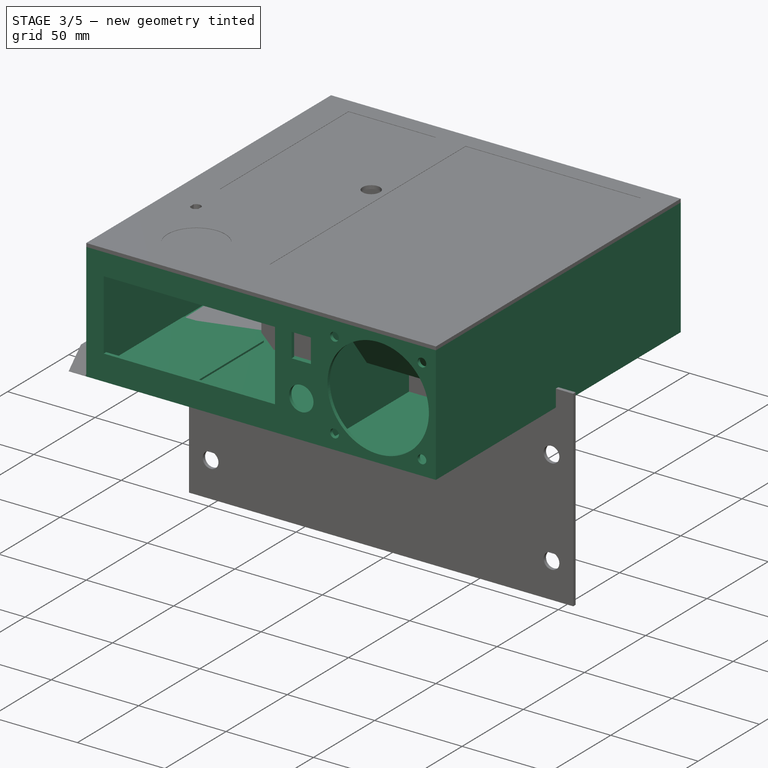
[diagram: stage 3 of 5 — iso view after this stage's code; geometry added in this stage tinted green]
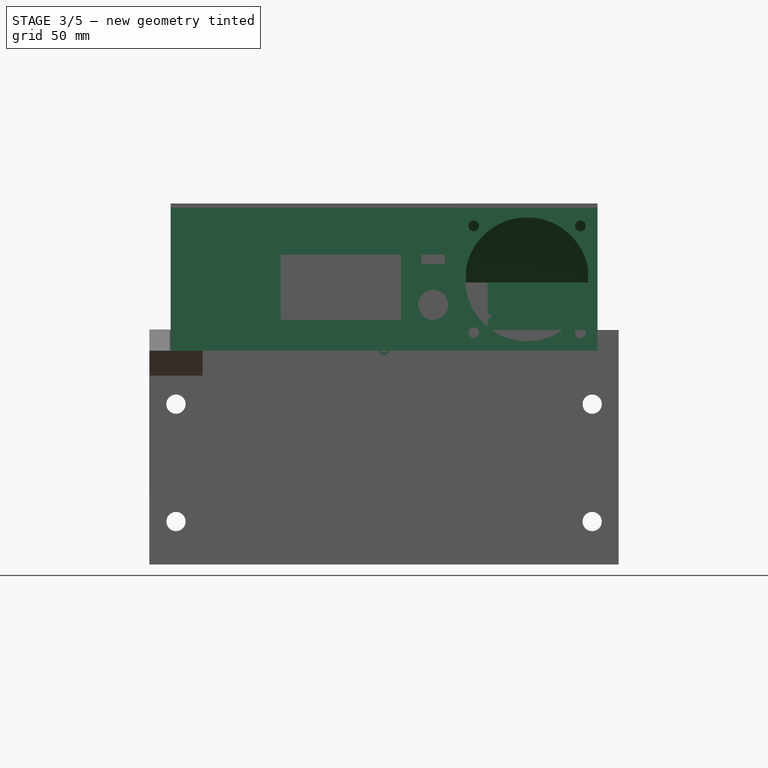
[diagram: stage 3 of 5 — front view after this stage's code; geometry added in this stage tinted green]
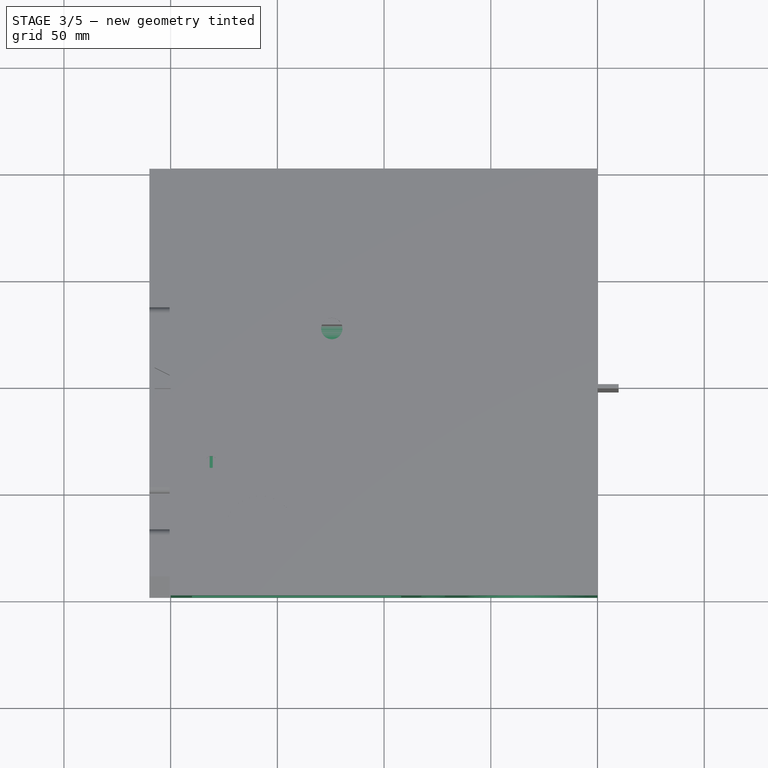
[diagram: stage 3 of 5 — top view after this stage's code; geometry added in this stage tinted green]
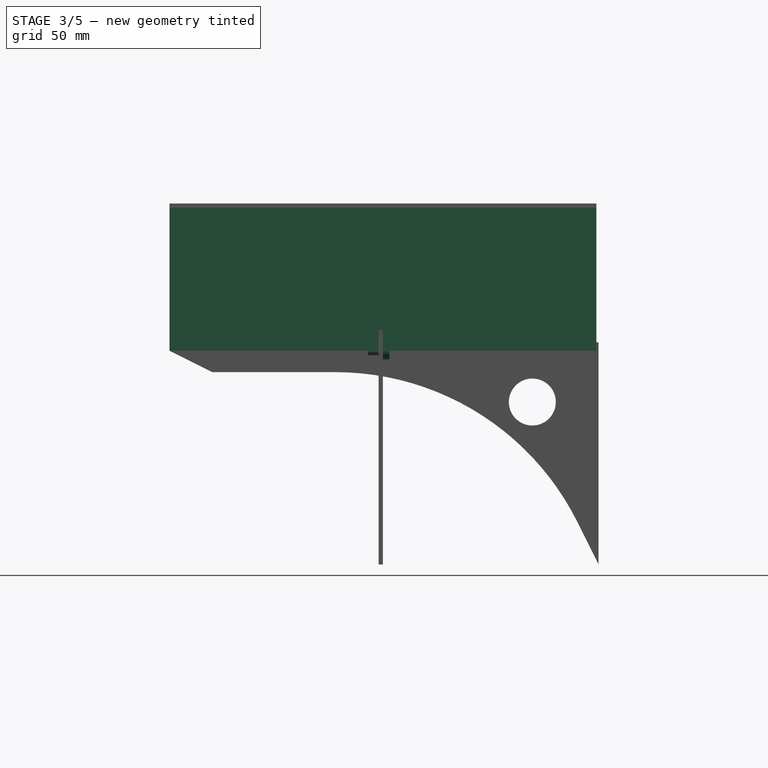
[diagram: stage 3 of 5 — right view after this stage's code; geometry added in this stage tinted green]
FEATURE [Sketcher::SketchObject] Sketch
  FullyConstrained = true
  MapMode = 5
  Support = -> [XY_Plane]
  sketch-geometry (4):
    g0: LineSegment StartX=-100 StartY=100 StartZ=0 EndX=100 EndY=100 EndZ=0
    g1: LineSegment StartX=100 StartY=100 StartZ=0 EndX=100 EndY=-100 EndZ=0
    g2: LineSegment StartX=100 StartY=-100 StartZ=0 EndX=-100 EndY=-100 EndZ=0
    g3: LineSegment StartX=-100 StartY=-100 StartZ=0 EndX=-100 EndY=100 EndZ=0
  constraints (11):
    c: Coincident(g0,g1)
    c: Coincident(g1,g2)
    c: Coincident(g2,g3)
    c: Coincident(g3,g0)
    c: Horizontal(g0)
    c: Horizontal(g2)
    c: Vertical(g1)
    c: Vertical(g3)
    c: Symmetric(g0,g1,g-1)
    c: DistanceX(g0,g0) = 200
    c: DistanceY(g3,g3) = 200
FEATURE [PartDesign::Pad] Pad  label="bottom"
  Direction = (1,1,1)
  Length = 2
  Length2 = 100
  Profile = -> Sketch
  Type = 0
FEATURE [Sketcher::SketchObject] Sketch001
  ExternalGeometry = -> [Pad]
  FullyConstrained = true
  MapMode = 5
  Placement = pos=(0,0,2) rot=(0,0,1;0rad)
  Support = -> [Pad]
  sketch-geometry (8):
    g0: LineSegment StartX=-41 StartY=-9 StartZ=0 EndX=20.5 EndY=-9 EndZ=0
    g1: LineSegment StartX=20.5 StartY=-9 StartZ=0 EndX=20.5 EndY=-80 EndZ=0
    g2: LineSegment StartX=20.5 StartY=-80 StartZ=0 EndX=-41 EndY=-80 EndZ=0
    g3: LineSegment StartX=-41 StartY=-80 StartZ=0 EndX=-41 EndY=-9 EndZ=0
    g4: LineSegment StartX=-97 StartY=-25 StartZ=0 EndX=-51 EndY=-25 EndZ=0
    g5: LineSegment StartX=-51 StartY=-25 StartZ=0 EndX=-51 EndY=-80 EndZ=0
    g6: LineSegment StartX=-51 StartY=-80 StartZ=0 EndX=-97 EndY=-80 EndZ=0
    g7: LineSegment StartX=-97 StartY=-80 StartZ=0 EndX=-97 EndY=-25 EndZ=0
  constraints (24):
    c: Coincident(g0,g1)
    c: Coincident(g1,g2)
    c: Coincident(g2,g3)
    c: Coincident(g3,g0)
    c: Horizontal(g0)
    c: Horizontal(g2)
    c: Vertical(g1)
    c: Vertical(g3)
    c: DistanceX(g0,g0) = 61.5
    c: DistanceY(g1,g1) = 71
    c: Coincident(g4,g5)
    c: Coincident(g5,g6)
    c: Coincident(g6,g7)
    c: Coincident(g7,g4)
    c: Horizontal(g4)
    c: Horizontal(g6)
    c: Vertical(g5)
    c: Vertical(g7)
    c: DistanceX(g4,g4) = 46
    c: DistanceY(g5,g5) = 55
    c: PointOnObject(g5,g2)
    c: DistanceX(g5,g2) = 10
    c: DistanceX(g-3,g6) = 3
    c: DistanceY(g-3,g6) = 20
FEATURE [PartDesign::Pad] Pad001  label="boards"
  BaseFeature = -> Pad
  Direction = (1,1,1)
  Length = 1
  Length2 = 100
  Profile = -> Sketch001
  Type = 0
FEATURE [Sketcher::SketchObject] Sketch002
  ExternalGeometry = -> [Pad001]
  FullyConstrained = true
  MapMode = 5
  Placement = pos=(0,0,2) rot=(0,0,1;0rad)
  Support = -> [Pad001]
  sketch-geometry (8):
    g0: LineSegment StartX=-100 StartY=-100 StartZ=0 EndX=100 EndY=-100 EndZ=0
    g1: LineSegment StartX=100 StartY=-100 StartZ=0 EndX=100 EndY=100 EndZ=0
    g2: LineSegment StartX=100 StartY=100 StartZ=0 EndX=-100 EndY=100 EndZ=0
    g3: LineSegment StartX=-100 StartY=100 StartZ=0 EndX=-100 EndY=-100 EndZ=0
    g4: LineSegment StartX=-98 StartY=-98 StartZ=0 EndX=98 EndY=-98 EndZ=0
    g5: LineSegment StartX=98 StartY=-98 StartZ=0 EndX=98 EndY=98 EndZ=0
    g6: LineSegment StartX=98 StartY=98 StartZ=0 EndX=-98 EndY=98 EndZ=0
    g7: LineSegment StartX=-98 StartY=98 StartZ=0 EndX=-98 EndY=-98 EndZ=0
  constraints (22):
    c: Coincident(g0,g1)
    c: Coincident(g1,g2)
    c: Coincident(g2,g3)
    c: Coincident(g3,g0)
    c: Horizontal(g0)
    c: Horizontal(g2)
    c: Vertical(g1)
    c: Vertical(g3)
    c: Coincident(g0,g-4)
    c: Coincident(g1,g-3)
    c: Coincident(g4,g5)
    c: Coincident(g5,g6)
    c: Coincident(g6,g7)
    c: Coincident(g7,g4)
    c: Horizontal(g4)
    c: Horizontal(g6)
    c: Vertical(g5)
    c: Vertical(g7)
    c: DistanceX(g5,g1) = 2
    c: DistanceX(g0,g4) = 2
    c: DistanceY(g0,g4) = 2
    c: DistanceY(g5,g1) = 2
FEATURE [PartDesign::Pad] Pad002  label="walls"
  BaseFeature = -> Pad001
  Direction = (1,1,1)
  Length = 65
  Length2 = 100
  Profile = -> Sketch002
  Type = 0
FEATURE [Sketcher::SketchObject] Sketch003
  ExternalGeometry = -> [Pad002]
  FullyConstrained = true
  MapMode = 5
  Placement = pos=(0,-100,0) rot=(1,0,0;1.5708rad)
  Support = -> [Pad002]
  sketch-geometry (13):
    g0: LineSegment StartX=-90 StartY=54.5 StartZ=0 EndX=8 EndY=54.5 EndZ=0
    g1: LineSegment StartX=8 StartY=54.5 StartZ=0 EndX=8 EndY=14.5 EndZ=0
    g2: LineSegment StartX=8 StartY=14.5 StartZ=0 EndX=-90 EndY=14.5 EndZ=0
    g3: LineSegment StartX=-90 StartY=14.5 StartZ=0 EndX=-90 EndY=54.5 EndZ=0
    g4: LineSegment StartX=0 StartY=34.5 StartZ=0 EndX=-100 EndY=34.5 EndZ=0
    g5: Circle CenterX=23 CenterY=21.5 CenterZ=0 NormalX=0 NormalY=0 NormalZ=1 AngleXU=0 Radius=7
    g6: LineSegment StartX=17.5 StartY=54.5 StartZ=0 EndX=28.5 EndY=54.5 EndZ=0
    g7: LineSegment StartX=28.5 StartY=54.5 StartZ=0 EndX=28.5 EndY=40.8 EndZ=0
    g8: LineSegment StartX=28.5 StartY=40.8 StartZ=0 EndX=17.5 EndY=40.8 EndZ=0
    g9: LineSegment StartX=17.5 StartY=40.8 StartZ=0 EndX=17.5 EndY=54.5 EndZ=0
    g10: LineSegment StartX=8 StartY=14.5 StartZ=0 EndX=23 EndY=14.5 EndZ=0
    g11: LineSegment StartX=23 StartY=21.5 StartZ=0 EndX=23 EndY=14.5 EndZ=0
    g12: LineSegment StartX=23 StartY=21.5 StartZ=0 EndX=23 EndY=40.8 EndZ=0
  constraints (37):
    c: Coincident(g0,g1)
    c: Coincident(g1,g2)
    c: Coincident(g2,g3)
    c: Coincident(g3,g0)
    c: Horizontal(g0)
    c: Horizontal(g2)
    c: Vertical(g1)
    c: Vertical(g3)
    c: DistanceX(g0,g0) = 98
    c: DistanceY(g1,g1) = 40
    c: DistanceX(g-3,g0) = 10
    c: PointOnObject(g4,g-2)
    c: Symmetric(g-4,g-4,g4)
    c: Symmetric(g2,g0,g4)
    c: Coincident(g6,g7)
    c: Coincident(g7,g8)
    c: Coincident(g8,g9)
    c: Coincident(g9,g6)
    c: Horizontal(g6)
    c: Horizontal(g8)
    c: Vertical(g7)
    c: Vertical(g9)
    c: Diameter(g5) = 14
    c: DistanceX(g8,g8) = 11
    c: DistanceY(g7,g7) = 13.7
    c: PointOnObject(g6,g0)
    c: Coincident(g10,g1)
    c: Horizontal(g10)
    c: PointOnObject(g10,g5)
    c: Coincident(g11,g5)
    c: Coincident(g11,g10)
    c: Vertical(g11)
    c: Coincident(g12,g5)
    c: Vertical(g12)
    c: Symmetric(g7,g8,g12)
    c: DistanceX(g10,g10) = 15
    c: DistanceX(g6,g-3) = 71.5
FEATURE [PartDesign::Pocket] Pocket  label="display"
  BaseFeature = -> Pad002
  Direction = (1,1,1)
  Length = 5
  Length2 = 100
  Profile = -> Sketch003
  Type = 0
FEATURE [Sketcher::SketchObject] Sketch004
  ExternalGeometry = -> [Pocket]
  FullyConstrained = true
  MapMode = 5
  Placement = pos=(0,0,2) rot=(0,0,1;0rad)
  Support = -> [Pocket]
  sketch-geometry (8):
    g0: LineSegment StartX=-98 StartY=34 StartZ=0 EndX=34 EndY=34 EndZ=0
    g1: LineSegment StartX=34 StartY=-98 StartZ=0 EndX=34 EndY=34 EndZ=0
    g2: LineSegment StartX=-98 StartY=36 StartZ=0 EndX=36 EndY=36 EndZ=0
    g3: LineSegment StartX=36 StartY=36 StartZ=0 EndX=36 EndY=-98 EndZ=0
    g4: LineSegment StartX=34 StartY=-98 StartZ=0 EndX=36 EndY=-98 EndZ=0
    g5: LineSegment StartX=-98 StartY=36 StartZ=0 EndX=-98 EndY=34 EndZ=0
    g6: LineSegment StartX=36 StartY=-98 StartZ=0 EndX=98 EndY=-98 EndZ=0
    g7: LineSegment StartX=-98 StartY=36 StartZ=0 EndX=-98 EndY=98 EndZ=0
  constraints (22):
    c: PointOnObject(g0,g-4)
    c: Horizontal(g0)
    c: PointOnObject(g1,g-3)
    c: Coincident(g1,g0)
    c: Vertical(g1)
    c: PointOnObject(g2,g-4)
    c: Horizontal(g2)
    c: Coincident(g3,g2)
    c: PointOnObject(g3,g-3)
    c: Vertical(g3)
    c: Coincident(g4,g1)
    c: Coincident(g4,g3)
    c: Coincident(g5,g2)
    c: Coincident(g5,g0)
    c: DistanceY(g5,g5) = 2
    c: DistanceX(g4,g4) = 2
    c: Coincident(g6,g3)
    c: Coincident(g6,g-5)
    c: Coincident(g7,g2)
    c: Coincident(g7,g-6)
    c: Equal(g7,g6)
    c: DistanceX(g6,g6) = 62
FEATURE [PartDesign::Pad] Pad003  label="air-walls"
  BaseFeature = -> Pocket
  Direction = (1,1,1)
  Length = 65
  Length2 = 100
  Profile = -> Sketch004
  Type = 0
FEATURE [Sketcher::SketchObject] Sketch005
  ExternalGeometry = -> [Pad003]
  FullyConstrained = true
  MapMode = 5
  Placement = pos=(0,-100,0) rot=(1,0,0;1.5708rad)
  Support = -> [Pad003]
  sketch-geometry (7):
    g0: Circle CenterX=67 CenterY=33.5 CenterZ=0 NormalX=0 NormalY=0 NormalZ=1 AngleXU=0 Radius=29
    g1: Circle CenterX=92 CenterY=58.5 CenterZ=0 NormalX=0 NormalY=0 NormalZ=1 AngleXU=0 Radius=2.5
    g2: Circle CenterX=42 CenterY=58.5 CenterZ=0 NormalX=0 NormalY=0 NormalZ=1 AngleXU=0 Radius=2.5
    g3: Circle CenterX=42 CenterY=8.5 CenterZ=0 NormalX=0 NormalY=0 NormalZ=1 AngleXU=0 Radius=2.5
    g4: Circle CenterX=92 CenterY=8.5 CenterZ=0 NormalX=0 NormalY=0 NormalZ=1 AngleXU=0 Radius=2.5
    g5: LineSegment StartX=2.5e-15 StartY=33.5 StartZ=0 EndX=67 EndY=33.5 EndZ=0
    g6: GeomPoint X=5.1e-15 Y=67 Z=0
  constraints (18):
    c: Diameter(g0) = 58
    c: Diameter(g1) = 5
    c: Diameter(g2) = 5
    c: Diameter(g3) = 5
    c: Diameter(g4) = 5
    c: DistanceX(g0,g1) = 25
    c: DistanceX(g2,g0) = 25
    c: DistanceX(g3,g0) = 25
    c: DistanceX(g0,g4) = 25
    c: DistanceY(g0,g1) = 25
    c: DistanceY(g0,g2) = 25
    c: DistanceY(g3,g0) = 25
    c: DistanceY(g4,g0) = 25
    c: Symmetric(g-3,g-3,g6)
    c: Symmetric(g6,g-1,g5)
    c: Horizontal(g5)
    c: Coincident(g0,g5)
    c: DistanceX(g5,g5) = 67
FEATURE [PartDesign::Pocket] Pocket001  label="fan"
  BaseFeature = -> Pad003
  Direction = (1,1,1)
  Length = 5
  Length2 = 100
  Profile = -> Sketch005
  Type = 0
FEATURE [Sketcher::SketchObject] Sketch006  label="inner-air-wall1"
  AttachmentOffset = pos=(0,0,30) rot=(0,0,1;0rad)
  ExternalGeometry = -> [Pocket001]
  FullyConstrained = true
  MapMode = 5
  Placement = pos=(0,0,32) rot=(0,0,1;0rad)
  Support = -> [Pocket001]
  sketch-geometry (4):
    g0: LineSegment StartX=36 StartY=-64 StartZ=0 EndX=98 EndY=-64 EndZ=0
    g1: LineSegment StartX=98 StartY=-64 StartZ=0 EndX=98 EndY=-66 EndZ=0
    g2: LineSegment StartX=98 StartY=-66 StartZ=0 EndX=36 EndY=-66 EndZ=0
    g3: LineSegment StartX=36 StartY=-66 StartZ=0 EndX=36 EndY=-64 EndZ=0
  constraints (12):
    c: Coincident(g0,g1)
    c: Coincident(g1,g2)
    c: Coincident(g2,g3)
    c: Coincident(g3,g0)
    c: Horizontal(g0)
    c: Horizontal(g2)
    c: Vertical(g1)
    c: Vertical(g3)
    c: PointOnObject(g0,g-3)
    c: PointOnObject(g1,g-4)
    c: DistanceY(g1,g1) = 2
    c: DistanceY(g0,g-3) = 100
FEATURE [PartDesign::Pad] Pad004  label="air-1"
  BaseFeature = -> Pocket001
  Direction = (1,1,1)
  Length = 35
  Length2 = 100
  Profile = -> Sketch006
  Type = 0
FEATURE [Sketcher::SketchObject] Sketch007  label="inner-air-wall2"
  ExternalGeometry = -> [Pad004]
  FullyConstrained = true
  MapMode = 5
  Placement = pos=(0,0,2) rot=(0,0,1;0rad)
  Support = -> [Pad004]
  sketch-geometry (4):
    g0: LineSegment StartX=36 StartY=36 StartZ=0 EndX=98 EndY=36 EndZ=0
    g1: LineSegment StartX=98 StartY=36 StartZ=0 EndX=98 EndY=34 EndZ=0
    g2: LineSegment StartX=98 StartY=34 StartZ=0 EndX=36 EndY=34 EndZ=0
    g3: LineSegment StartX=36 StartY=34 StartZ=0 EndX=36 EndY=36 EndZ=0
  constraints (11):
    c: Coincident(g0,g1)
    c: Coincident(g1,g2)
    c: Coincident(g2,g3)
    c: Coincident(g3,g0)
    c: Horizontal(g0)
    c: Horizontal(g2)
    c: Vertical(g1)
    c: Vertical(g3)
    c: Coincident(g0,g-3)
    c: PointOnObject(g1,g-4)
    c: DistanceY(g1,g1) = 2
FEATURE [PartDesign::Pad] Pad005  label="air-2"
  BaseFeature = -> Pad004
  Direction = (1,1,1)
  Length = 35
  Length2 = 100
  Profile = -> Sketch007
  Type = 0
FEATURE [Sketcher::SketchObject] Sketch008  label="inner-air-wall3"
  ExternalGeometry = -> [Pad005]
  FullyConstrained = true
  MapMode = 5
  Placement = pos=(0,0,2) rot=(0,0,1;0rad)
  Support = -> [Pad005]
  sketch-geometry (4):
    g0: LineSegment StartX=36 StartY=36 StartZ=0 EndX=34 EndY=36 EndZ=0
    g1: LineSegment StartX=34 StartY=36 StartZ=0 EndX=34 EndY=98 EndZ=0
    g2: LineSegment StartX=34 StartY=98 StartZ=0 EndX=36 EndY=98 EndZ=0
    g3: LineSegment StartX=36 StartY=98 StartZ=0 EndX=36 EndY=36 EndZ=0
  constraints (11):
    c: Coincident(g0,g1)
    c: Coincident(g1,g2)
    c: Coincident(g2,g3)
    c: Coincident(g3,g0)
    c: Horizontal(g0)
    c: Horizontal(g2)
    c: Vertical(g1)
    c: Vertical(g3)
    c: Coincident(g0,g-3)
    c: PointOnObject(g1,g-4)
    c: DistanceX(g2,g2) = 2
FEATURE [PartDesign::Pad] Pad006  label="air-3"
  BaseFeature = -> Pad005
  Direction = (1,1,1)
  Length = 35
  Length2 = 100
  Profile = -> Sketch008
  Type = 0
FEATURE [PartDesign::Chamfer] Chamfer003
  Angle = 45
  Base = -> Pad030 [Edge73,Edge128,Edge127,Edge125,Edge103,Edge105,Edge89,Edge91,Edge57,Edge59,Edge61]
  BaseFeature = -> Pad030
  ChamferType = 0
  FlipDirection = false
  Size = 1.9
  Size2 = 1
  SupportTransform = false
  UseAllEdges = false
FEATURE [Sketcher::SketchObject] Sketch065
  ExternalGeometry = -> [Chamfer003]
  FullyConstrained = true
  MapMode = 5
  Placement = pos=(0,0,69) rot=(0,0,1;0rad)
  Support = -> [Chamfer003]
  sketch-geometry (2):
    g0: LineSegment StartX=-16 StartY=-70 StartZ=0 EndX=-100 EndY=-70 EndZ=0
    g1: Circle CenterX=-58 CenterY=-70 CenterZ=0 NormalX=0 NormalY=0 NormalZ=1 AngleXU=0 Radius=16.5
  constraints (5):
    c: Coincident(g0,g-3)
    c: PointOnObject(g0,g-4)
    c: Horizontal(g0)
    c: Diameter(g1) = 33
    c: Symmetric(g0,g0,g1)
FEATURE [PartDesign::Pocket] Pocket019
  BaseFeature = -> Chamfer003
  Direction = (0,0,-1)
  Length = 0.2
  Length2 = 100
  Profile = -> Sketch065
  Type = 0
FEATURE [Sketcher::SketchObject] Sketch066
  ExternalGeometry = -> [Pocket019]
  FullyConstrained = true
  MapMode = 5
  Placement = pos=(0,0,67) rot=(1,0,0;3.14159rad)
  Support = -> [Pocket019]
  sketch-geometry (4):
    g0: LineSegment StartX=-91 StartY=94 StartZ=0 EndX=-24 EndY=94 EndZ=0
    g1: LineSegment StartX=-24 StartY=94 StartZ=0 EndX=-24 EndY=47 EndZ=0
    g2: LineSegment StartX=-24 StartY=47 StartZ=0 EndX=-91 EndY=47 EndZ=0
    g3: LineSegment StartX=-91 StartY=47 StartZ=0 EndX=-91 EndY=94 EndZ=0
  constraints (12):
    c: Coincident(g0,g1)
    c: Coincident(g1,g2)
    c: Coincident(g2,g3)
    c: Coincident(g3,g0)
    c: Horizontal(g0)
    c: Horizontal(g2)
    c: Vertical(g1)
    c: Vertical(g3)
    c: DistanceX(g0,g0) = 67
    c: DistanceY(g1,g1) = 47
    c: DistanceX(g-4,g0) = 9
    c: DistanceY(g0,g-4) = 6
FEATURE [PartDesign::Pocket] Pocket020
  BaseFeature = -> Pocket019
  Direction = (0,0,1)
  Length = 0.2
  Length2 = 100
  Profile = -> Sketch066
  Type = 0
FEATURE [Sketcher::SketchObject] Sketch078
  FullyConstrained = true
  MapMode = 5
  Placement = pos=(0,0,0) rot=(1,0,0;1.5708rad)
  Support = -> [XZ_Plane005]
  sketch-geometry (1):
    g0: Circle CenterX=0 CenterY=0 CenterZ=0 NormalX=0 NormalY=0 NormalZ=1 AngleXU=0 Radius=4
  constraints (2):
    c: Coincident(g0,g-1)
    c: Diameter(g0) = 8
FEATURE [PartDesign::Pad] Pad039
  Direction = (1,1,1)
  Length = 3
  Length2 = 100
  Placement = pos=(0,0,0) rot=(1,0,0;1.5708rad)
  Profile = -> Sketch078
  Reversed = true
  Type = 0
FEATURE [Sketcher::SketchObject] Sketch079
  FullyConstrained = true
  MapMode = 5
  Placement = pos=(0,0,0) rot=(1,0,0;1.5708rad)
  Support = -> [Pad039]
  sketch-geometry (1):
    g0: Circle CenterX=0 CenterY=0 CenterZ=0 NormalX=0 NormalY=0 NormalZ=1 AngleXU=0 Radius=2.1
  constraints (2):
    c: Coincident(g0,g-1)
    c: Diameter(g0) = 4.2
FEATURE [PartDesign::Pad] Pad040
  BaseFeature = -> Pad039
  Direction = (1,1,1)
  Length = 7
  Length2 = 100
  Placement = pos=(0,0,0) rot=(1,0,0;1.5708rad)
  Profile = -> Sketch079
  Type = 0
FEATURE [Sketcher::SketchObject] Sketch080
  FullyConstrained = true
  MapMode = 5
  Placement = pos=(0,-7,5.5e-15) rot=(1,0,0;1.5708rad)
  Support = -> [Pad040]
  sketch-geometry (1):
    g0: Circle CenterX=0 CenterY=0 CenterZ=0 NormalX=0 NormalY=0 NormalZ=1 AngleXU=0 Radius=1.1
  constraints (2):
    c: Coincident(g0,g-1)
    c: Diameter(g0) = 2.2
FEATURE [PartDesign::Pocket] Pocket029
  BaseFeature = -> Pad040
  Direction = (1,1,1)
  Length = 8
  Length2 = 100
  Placement = pos=(0,0,0) rot=(1,0,0;1.5708rad)
  Profile = -> Sketch080
  Type = 0
FEATURE [PartDesign::Body] Body005  label="pin"
  Group = -> [Sketch078,Pad039,Sketch079,Pad040,Sketch080,Pocket029]
  Origin = -> Origin005
  Placement = pos=(42,-98,58.5) rot=(0,0,1;0rad)
  Tip = -> Pocket029
FEATURE [Sketcher::SketchObject] Sketch081
  ExternalGeometry = -> [Pocket020]
  FullyConstrained = true
  MapMode = 5
  Placement = pos=(0,-68.4,0) rot=(1,0,0;1.5708rad)
  Support = -> [Pocket020]
  sketch-geometry (4):
    g0: LineSegment StartX=38.4 StartY=67 StartZ=0 EndX=95.6 EndY=67 EndZ=0
    g1: LineSegment StartX=95.6 StartY=67 StartZ=0 EndX=95.6 EndY=32 EndZ=0
    g2: LineSegment StartX=95.6 StartY=32 StartZ=0 EndX=38.4 EndY=32 EndZ=0
    g3: LineSegment StartX=38.4 StartY=32 StartZ=0 EndX=38.4 EndY=67 EndZ=0
  constraints (11):
    c: Coincident(g0,g1)
    c: Coincident(g1,g2)
    c: Coincident(g2,g3)
    c: Coincident(g3,g0)
    c: Horizontal(g0)
    c: Horizontal(g2)
    c: Vertical(g1)
    c: Vertical(g3)
    c: Coincident(g0,g-3)
    c: PointOnObject(g-3,g1)
    c: DistanceY(g1,g1) = 35
FEATURE [PartDesign::Pad] Pad041
  BaseFeature = -> Pocket020
  Direction = (0,-1,2e-16)
  Length = 24
  Length2 = 100
  Profile = -> Sketch081
  Type = 0
FEATURE [Sketcher::SketchObject] Sketch082
  ExternalGeometry = -> [Pad041]
  FullyConstrained = true
  MapMode = 5
  Placement = pos=(95.6,0,0) rot=(0.57735,0.57735,0.57735;2.0944rad)
  Support = -> [Pad041]
  sketch-geometry (3):
    g0: LineSegment StartX=-92.4 StartY=64 StartZ=0 EndX=-68.4 EndY=32 EndZ=0
    g1: LineSegment StartX=-68.4 StartY=32 StartZ=0 EndX=-92.4 EndY=32 EndZ=0
    g2: LineSegment StartX=-92.4 StartY=32 StartZ=0 EndX=-92.4 EndY=64 EndZ=0
  constraints (7):
    c: PointOnObject(g0,g-3)
    c: Coincident(g0,g-4)
    c: Coincident(g0,g1)
    c: Coincident(g1,g-4)
    c: Coincident(g1,g2)
    c: Coincident(g2,g0)
    c: DistanceY(g0,g-3) = 3
FEATURE [PartDesign::Pocket] Pocket030
  BaseFeature = -> Pad041
  Direction = (-1,0,0)
  Length = 5
  Length2 = 100
  Profile = -> Sketch082
  Type = 1
FEATURE [PartDesign::Fillet] Fillet001
  Base = -> Pocket030 [Edge82]
  BaseFeature = -> Pocket030
  Radius = 8
  SupportTransform = false
  UseAllEdges = false
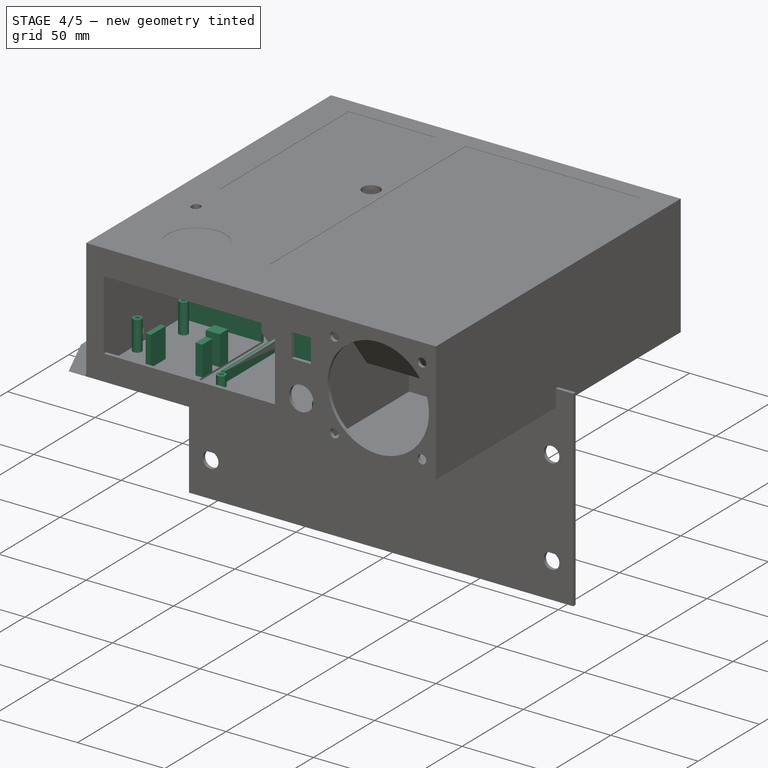
[diagram: stage 4 of 5 — iso view after this stage's code; geometry added in this stage tinted green]
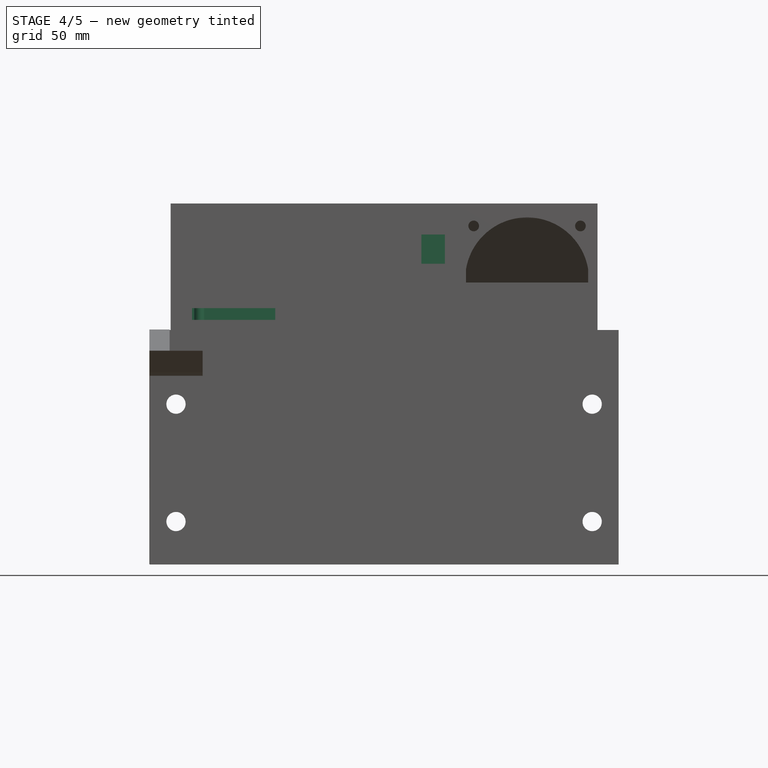
[diagram: stage 4 of 5 — front view after this stage's code; geometry added in this stage tinted green]
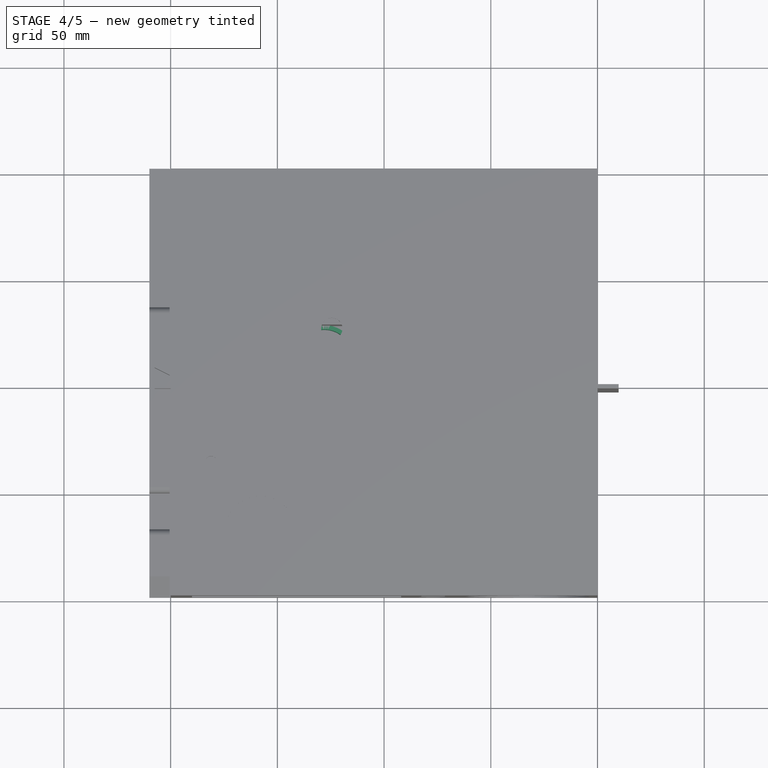
[diagram: stage 4 of 5 — top view after this stage's code; geometry added in this stage tinted green]
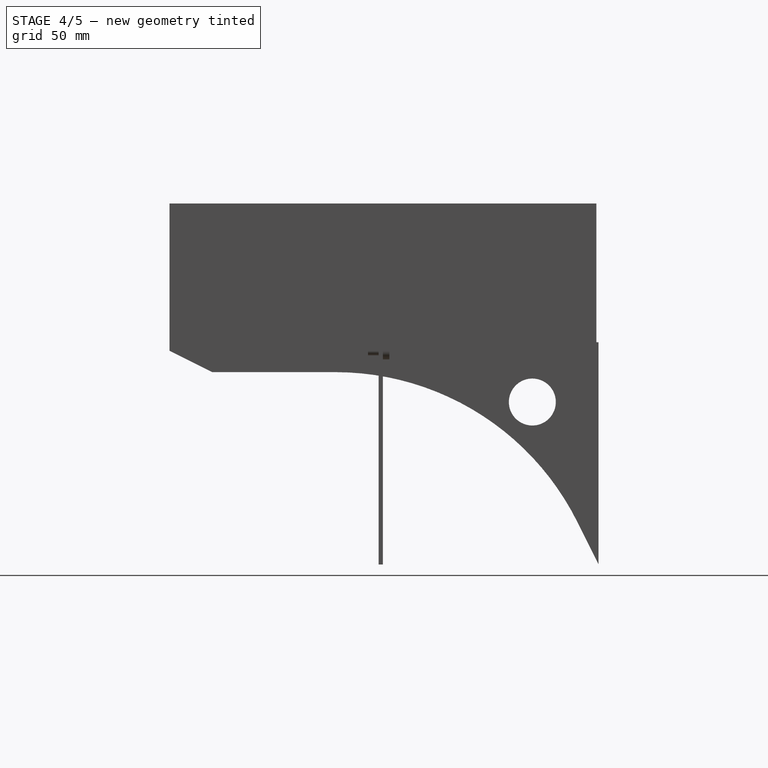
[diagram: stage 4 of 5 — right view after this stage's code; geometry added in this stage tinted green]
FEATURE [Sketcher::SketchObject] Sketch009  label="inner-air-wall4"
  AttachmentOffset = pos=(0,0,30) rot=(0,0,1;0rad)
  ExternalGeometry = -> [Pad006]
  FullyConstrained = true
  MapMode = 5
  Placement = pos=(0,0,32) rot=(0,0,1;0rad)
  Support = -> [Pad006]
  sketch-geometry (6):
    g0: LineSegment StartX=-64 StartY=36 StartZ=0 EndX=-66 EndY=36 EndZ=0
    g1: LineSegment StartX=-66 StartY=36 StartZ=0 EndX=-66 EndY=98 EndZ=0
    g2: LineSegment StartX=-66 StartY=98 StartZ=0 EndX=-64 EndY=98 EndZ=0
    g3: LineSegment StartX=-64 StartY=98 StartZ=0 EndX=-64 EndY=36 EndZ=0
    g4: LineSegment StartX=36 StartY=36 StartZ=0 EndX=36 EndY=-64 EndZ=0
    g5: LineSegment StartX=-64 StartY=36 StartZ=0 EndX=36 EndY=36 EndZ=0
  constraints (16):
    c: Coincident(g0,g1)
    c: Coincident(g1,g2)
    c: Coincident(g2,g3)
    c: Coincident(g3,g0)
    c: Horizontal(g0)
    c: Horizontal(g2)
    c: Vertical(g1)
    c: Vertical(g3)
    c: PointOnObject(g0,g-4)
    c: PointOnObject(g1,g-5)
    c: DistanceX(g2,g2) = 2
    c: Coincident(g4,g-4)
    c: Coincident(g4,g-3)
    c: Coincident(g5,g0)
    c: Coincident(g5,g4)
    c: Equal(g5,g4)
FEATURE [PartDesign::Pad] Pad007  label="air-4"
  BaseFeature = -> Pad006
  Direction = (1,1,1)
  Length = 35
  Length2 = 100
  Profile = -> Sketch009
  Type = 0
FEATURE [Sketcher::SketchObject] Sketch010  label="air-out-one"
  ExternalGeometry = -> [Pad007]
  FullyConstrained = true
  MapMode = 5
  Placement = pos=(-100,0,0) rot=(0.57735,-0.57735,-0.57735;2.0944rad)
  Support = -> [Pad007]
  sketch-geometry (4):
    g0: LineSegment StartX=-96 StartY=64 StartZ=0 EndX=-91 EndY=64 EndZ=0
    g1: LineSegment StartX=-91 StartY=64 StartZ=0 EndX=-91 EndY=5 EndZ=0
    g2: LineSegment StartX=-91 StartY=5 StartZ=0 EndX=-96 EndY=5 EndZ=0
    g3: LineSegment StartX=-96 StartY=5 StartZ=0 EndX=-96 EndY=64 EndZ=0
  constraints (12):
    c: Coincident(g0,g1)
    c: Coincident(g1,g2)
    c: Coincident(g2,g3)
    c: Coincident(g3,g0)
    c: Horizontal(g0)
    c: Horizontal(g2)
    c: Vertical(g1)
    c: Vertical(g3)
    c: DistanceX(g0,g0) = 5
    c: DistanceY(g0,g-4) = 3
    c: DistanceY(g-4,g2) = 3
    c: DistanceX(g-4,g0) = 4
FEATURE [PartDesign::Pocket] Pocket002
  BaseFeature = -> Pad007
  Direction = (1,1,1)
  Length = 5
  Length2 = 100
  Profile = -> Sketch010
  Type = 0
FEATURE [PartDesign::LinearPattern] LinearPattern  label="air-out"
  BaseFeature = -> Pocket002
  Direction = -> Sketch010 [H_Axis]
  Length = 52
  Occurrences = 6
  Originals = -> [Pocket002]
FEATURE [Sketcher::SketchObject] Sketch042
  ExternalGeometry = -> [LinearPattern]
  FullyConstrained = true
  MapMode = 5
  Placement = pos=(0,-98,0) rot=(0,0.707107,0.707107;3.14159rad)
  Support = -> [LinearPattern]
  sketch-geometry (4):
    g0: Circle CenterX=-5.5 CenterY=62.5 CenterZ=0 NormalX=0 NormalY=0 NormalZ=1 AngleXU=0 Radius=3
    g1: Circle CenterX=87.5 CenterY=62.5 CenterZ=0 NormalX=0 NormalY=0 NormalZ=1 AngleXU=0 Radius=3
    g2: Circle CenterX=87.5 CenterY=6.5 CenterZ=0 NormalX=0 NormalY=0 NormalZ=1 AngleXU=0 Radius=3
    g3: Circle CenterX=-5.5 CenterY=6.5 CenterZ=0 NormalX=0 NormalY=0 NormalZ=1 AngleXU=0 Radius=3
  constraints (12):
    c: Diameter(g0) = 6
    c: Diameter(g1) = 6
    c: Diameter(g2) = 6
    c: Diameter(g3) = 6
    c: DistanceX(g-3,g0) = 2.5
    c: DistanceX(g1,g-3) = 2.5
    c: DistanceX(g2,g-4) = 2.5
    c: DistanceX(g-4,g3) = 2.5
    c: DistanceY(g-3,g0) = 8
    c: DistanceY(g-3,g1) = 8
    c: DistanceY(g2,g-4) = 8
    c: DistanceY(g3,g-4) = 8
FEATURE [PartDesign::Pad] Pad024  label="display-bolts-1"
  BaseFeature = -> LinearPattern
  Direction = (1,1,1)
  Length = 6
  Length2 = 100
  Profile = -> Sketch042
  Type = 0
FEATURE [Sketcher::SketchObject] Sketch043
  ExternalGeometry = -> [Pad024]
  FullyConstrained = true
  MapMode = 5
  Placement = pos=(0,-92,0) rot=(0,0.707107,0.707107;3.14159rad)
  Support = -> [Pad024]
  sketch-geometry (4):
    g0: Circle CenterX=87.5 CenterY=62.5 CenterZ=0 NormalX=0 NormalY=0 NormalZ=1 AngleXU=0 Radius=1.1
    g1: Circle CenterX=87.5 CenterY=6.5 CenterZ=0 NormalX=0 NormalY=0 NormalZ=1 AngleXU=0 Radius=1.1
    g2: Circle CenterX=-5.5 CenterY=62.5 CenterZ=0 NormalX=0 NormalY=0 NormalZ=1 AngleXU=0 Radius=1.1
    g3: Circle CenterX=-5.5 CenterY=6.5 CenterZ=0 NormalX=0 NormalY=0 NormalZ=1 AngleXU=0 Radius=1.1
  constraints (8):
    c: Coincident(g0,g-3)
    c: Coincident(g1,g-5)
    c: Coincident(g2,g-4)
    c: Coincident(g3,g-6)
    c: Diameter(g2) = 2.2
    c: Diameter(g3) = 2.2
    c: Diameter(g0) = 2.2
    c: Diameter(g1) = 2.2
FEATURE [PartDesign::Pocket] Pocket010  label="display-bolts-2"
  BaseFeature = -> Pad024
  Direction = (1,1,1)
  Length = 7
  Length2 = 100
  Profile = -> Sketch043
  Type = 0
FEATURE [Sketcher::SketchObject] Sketch044
  ExternalGeometry = -> [Pocket010]
  FullyConstrained = true
  MapMode = 5
  Placement = pos=(0,0,3) rot=(0,0,1;0rad)
  Support = -> [Pocket010]
  sketch-geometry (18):
    g0: LineSegment StartX=-97 StartY=-25 StartZ=0 EndX=-51 EndY=-25 EndZ=0
    g1: LineSegment StartX=-51 StartY=-25 StartZ=0 EndX=-51 EndY=-27 EndZ=0
    g2: LineSegment StartX=-51 StartY=-27 StartZ=0 EndX=-97 EndY=-27 EndZ=0
    g3: LineSegment StartX=-97 StartY=-27 StartZ=0 EndX=-97 EndY=-25 EndZ=0
    g4: Circle CenterX=-86.5 CenterY=-39.8 CenterZ=0 NormalX=0 NormalY=0 NormalZ=1 AngleXU=0 Radius=2.5
    g5: LineSegment StartX=-51 StartY=-54 StartZ=0 EndX=-59 EndY=-54 EndZ=0
    g6: LineSegment StartX=-59 StartY=-54 StartZ=0 EndX=-59 EndY=-61 EndZ=0
    g7: LineSegment StartX=-59 StartY=-61 StartZ=0 EndX=-51 EndY=-61 EndZ=0
    g8: LineSegment StartX=-51 StartY=-61 StartZ=0 EndX=-51 EndY=-54 EndZ=0
    g9: LineSegment StartX=-51 StartY=-67 StartZ=0 EndX=-55 EndY=-67 EndZ=0
    g10: LineSegment StartX=-55 StartY=-67 StartZ=0 EndX=-55 EndY=-75 EndZ=0
    g11: LineSegment StartX=-55 StartY=-75 StartZ=0 EndX=-51 EndY=-75 EndZ=0
    g12: LineSegment StartX=-51 StartY=-75 StartZ=0 EndX=-51 EndY=-67 EndZ=0
    g13: LineSegment StartX=-80 StartY=-80 StartZ=0 EndX=-77 EndY=-80 EndZ=0
    g14: LineSegment StartX=-77 StartY=-80 StartZ=0 EndX=-77 EndY=-68 EndZ=0
    g15: LineSegment StartX=-77 StartY=-68 StartZ=0 EndX=-80 EndY=-68 EndZ=0
    g16: LineSegment StartX=-80 StartY=-68 StartZ=0 EndX=-80 EndY=-80 EndZ=0
    g17: Circle CenterX=-93.2 CenterY=-68 CenterZ=0 NormalX=0 NormalY=0 NormalZ=1 AngleXU=0 Radius=2.5
  constraints (53):
    c: Coincident(g0,g1)
    c: Coincident(g1,g2)
    c: Coincident(g2,g3)
    c: Coincident(g3,g0)
    c: Horizontal(g0)
    c: Horizontal(g2)
    c: Vertical(g1)
    c: Vertical(g3)
    c: Coincident(g0,g-3)
    c: PointOnObject(g1,g-5)
    c: Coincident(g5,g6)
    c: Coincident(g6,g7)
    c: Coincident(g7,g8)
    c: Coincident(g8,g5)
    c: Horizontal(g5)
    c: Horizontal(g7)
    c: Vertical(g6)
    c: Vertical(g8)
    c: PointOnObject(g5,g-5)
    c: Coincident(g9,g10)
    c: Coincident(g10,g11)
    c: Coincident(g11,g12)
    c: Coincident(g12,g9)
    c: Horizontal(g9)
    c: Horizontal(g11)
    c: Vertical(g10)
    c: Vertical(g12)
    c: PointOnObject(g9,g-5)
    c: Coincident(g13,g14)
    c: Coincident(g14,g15)
    c: Coincident(g15,g16)
    c: Coincident(g16,g13)
    c: Horizontal(g13)
    c: Horizontal(g15)
    c: Vertical(g14)
    c: Vertical(g16)
    c: PointOnObject(g13,g-4)
    c: DistanceY(g3,g3) = 2
    c: Diameter(g4) = 5
    c: Diameter(g17) = 5
    c: DistanceX(g0,g4) = 10.5
    c: DistanceY(g4,g0) = 14.8
    c: DistanceY(g8,g8) = 7
    c: DistanceX(g5,g5) = 8
    c: DistanceY(g-5,g7) = 19
    c: DistanceY(g12,g12) = 8
    c: DistanceY(g-5,g11) = 5
    c: DistanceX(g9,g9) = 4
    c: DistanceX(g13,g13) = 3
    c: DistanceY(g14,g14) = 12
    c: DistanceX(g-4,g13) = 17
    c: DistanceY(g-4,g17) = 12
    c: DistanceX(g-4,g17) = 3.8
FEATURE [PartDesign::Pad] Pad025  label="board-1-holder"
  BaseFeature = -> Pocket010
  Direction = (1,1,1)
  Length = 17
  Length2 = 100
  Profile = -> Sketch044
  Type = 0
FEATURE [Sketcher::SketchObject] Sketch046
  ExternalGeometry = -> [Pad025]
  FullyConstrained = true
  MapMode = 5
  Placement = pos=(0,0,20) rot=(0,0,1;0rad)
  Support = -> [Pad025]
  sketch-geometry (2):
    g0: Circle CenterX=-86.5 CenterY=-39.8 CenterZ=0 NormalX=0 NormalY=0 NormalZ=1 AngleXU=0 Radius=1.1
    g1: Circle CenterX=-93.2 CenterY=-68 CenterZ=0 NormalX=0 NormalY=0 NormalZ=1 AngleXU=0 Radius=1.1
  constraints (4):
    c: Coincident(g0,g-3)
    c: Coincident(g1,g-4)
    c: Diameter(g0) = 2.2
    c: Diameter(g1) = 2.2
FEATURE [PartDesign::Pocket] Pocket011  label="board-1-holes"
  BaseFeature = -> Pad025
  Direction = (1,1,1)
  Length = 7
  Length2 = 100
  Profile = -> Sketch046
  Type = 0
FEATURE [Sketcher::SketchObject] Sketch047
  ExternalGeometry = -> [Pocket011]
  FullyConstrained = true
  MapMode = 5
  Placement = pos=(0,0,3) rot=(0,0,1;0rad)
  Support = -> [Pocket011]
  sketch-geometry (7):
    g0: LineSegment StartX=-41 StartY=-74 StartZ=0 EndX=-39 EndY=-74 EndZ=0
    g1: LineSegment StartX=-39 StartY=-74 StartZ=0 EndX=-39 EndY=-9 EndZ=0
    g2: LineSegment StartX=-39 StartY=-9 StartZ=0 EndX=-41 EndY=-9 EndZ=0
    g3: LineSegment StartX=-41 StartY=-9 StartZ=0 EndX=-41 EndY=-74 EndZ=0
    g4: Circle CenterX=-38.5 CenterY=-77.5 CenterZ=0 NormalX=0 NormalY=0 NormalZ=1 AngleXU=0 Radius=2.5
    g5: Circle CenterX=18 CenterY=-11.5 CenterZ=0 NormalX=0 NormalY=0 NormalZ=1 AngleXU=0 Radius=2.5
    g6: Circle CenterX=15.5 CenterY=-76 CenterZ=0 NormalX=0 NormalY=0 NormalZ=1 AngleXU=0 Radius=2.5
  constraints (21):
    c: Coincident(g0,g1)
    c: Coincident(g1,g2)
    c: Coincident(g2,g3)
    c: Coincident(g3,g0)
    c: Horizontal(g0)
    c: Horizontal(g2)
    c: Vertical(g1)
    c: Vertical(g3)
    c: PointOnObject(g0,g-4)
    c: PointOnObject(g1,g-3)
    c: DistanceX(g2,g2) = 2
    c: DistanceY(g3,g3) = 65
    c: Diameter(g5) = 5
    c: Diameter(g6) = 5
    c: Diameter(g4) = 5
    c: DistanceX(g-5,g4) = 2.5
    c: DistanceX(g5,g-3) = 2.5
    c: DistanceX(g6,g-5) = 5
    c: DistanceY(g-5,g4) = 2.5
    c: DistanceY(g5,g-3) = 2.5
    c: DistanceY(g-5,g6) = 4
FEATURE [PartDesign::Pad] Pad026  label="board-2-holder"
  BaseFeature = -> Pocket011
  Direction = (1,1,1)
  Length = 6
  Length2 = 100
  Profile = -> Sketch047
  Type = 0
FEATURE [Sketcher::SketchObject] Sketch048
  ExternalGeometry = -> [Pad026]
  FullyConstrained = true
  MapMode = 5
  Placement = pos=(0,0,9) rot=(0,0,1;0rad)
  Support = -> [Pad026]
  sketch-geometry (3):
    g0: Circle CenterX=18 CenterY=-11.5 CenterZ=0 NormalX=0 NormalY=0 NormalZ=1 AngleXU=0 Radius=1.1
    g1: Circle CenterX=15.5 CenterY=-76 CenterZ=0 NormalX=0 NormalY=0 NormalZ=1 AngleXU=0 Radius=1.1
    g2: Circle CenterX=-38.5 CenterY=-77.5 CenterZ=0 NormalX=0 NormalY=0 NormalZ=1 AngleXU=0 Radius=1.1
  constraints (6):
    c: Coincident(g0,g-5)
    c: Coincident(g1,g-4)
    c: Coincident(g2,g-3)
    c: Diameter(g0) = 2.2
    c: Diameter(g1) = 2.2
    c: Diameter(g2) = 2.2
FEATURE [PartDesign::Pocket] Pocket012  label="board-2-hole"
  BaseFeature = -> Pad026
  Direction = (1,1,1)
  Length = 7
  Length2 = 100
  Profile = -> Sketch048
  Type = 0
FEATURE [Sketcher::SketchObject] Sketch049
  ExternalGeometry = -> [Pocket012]
  FullyConstrained = true
  MapMode = 5
  Placement = pos=(-100,0,0) rot=(0.57735,-0.57735,-0.57735;2.0944rad)
  Support = -> [Pocket012]
  sketch-geometry (2):
    g0: LineSegment StartX=80 StartY=3 StartZ=0 EndX=80 EndY=13 EndZ=0
    g1: Circle CenterX=59.8 CenterY=8.5 CenterZ=0 NormalX=0 NormalY=0 NormalZ=1 AngleXU=0 Radius=4
  constraints (7):
    c: Vertical(g0)
    c: DistanceY(g0,g0) = 10
    c: DistanceY(g-4,g0) = 1
    c: DistanceX(g0,g-4) = 20
    c: Diameter(g1) = 8
    c: DistanceY(g0,g1) = 5.5
    c: DistanceX(g1,g0) = 20.2
FEATURE [PartDesign::Pocket] Pocket013  label="lora-antenna"
  BaseFeature = -> Pocket012
  Direction = (1,1,1)
  Length = 5
  Length2 = 100
  Profile = -> Sketch049
  Type = 0
FEATURE [Sketcher::SketchObject] Sketch051
  ExternalGeometry = -> [Pocket013]
  FullyConstrained = true
  MapMode = 5
  Placement = pos=(-100,0,0) rot=(0.57735,-0.57735,-0.57735;2.0944rad)
  Support = -> [Pocket013]
  sketch-geometry (6):
    g0: LineSegment StartX=-24 StartY=49.5 StartZ=0 EndX=11 EndY=49.5 EndZ=0
    g1: LineSegment StartX=11 StartY=49.5 StartZ=0 EndX=11 EndY=17.5 EndZ=0
    g2: LineSegment StartX=11 StartY=17.5 StartZ=0 EndX=-24 EndY=17.5 EndZ=0
    g3: LineSegment StartX=-24 StartY=17.5 StartZ=0 EndX=-24 EndY=49.5 EndZ=0
    g4: LineSegment StartX=-34 StartY=67 StartZ=0 EndX=-34 EndY=0 EndZ=0
    g5: LineSegment StartX=-34 StartY=33.5 StartZ=0 EndX=11 EndY=33.5 EndZ=0
  constraints (18):
    c: Coincident(g0,g1)
    c: Coincident(g1,g2)
    c: Coincident(g2,g3)
    c: Coincident(g3,g0)
    c: Horizontal(g0)
    c: Horizontal(g2)
    c: Vertical(g1)
    c: Vertical(g3)
    c: DistanceX(g0,g0) = 35
    c: DistanceY(g1,g1) = 32
    c: Vertical(g4)
    c: PointOnObject(g4,g-3)
    c: PointOnObject(g4,g-1)
    c: DistanceX(g4,g-1) = 34
    c: DistanceX(g4,g2) = 10
    c: Horizontal(g5)
    c: Symmetric(g4,g4,g5)
    c: Symmetric(g1,g0,g5)
FEATURE [PartDesign::Pocket] Pocket014  label="powers-switch"
  BaseFeature = -> Pocket013
  Direction = (1,1,1)
  Length = 5
  Length2 = 100
  Profile = -> Sketch051
  Type = 0
FEATURE [Sketcher::SketchObject] Sketch052
  ExternalGeometry = -> [Pocket014]
  FullyConstrained = true
  MapMode = 5
  Placement = pos=(0,0,2) rot=(0,0,1;0rad)
  Support = -> [Pocket014]
  sketch-geometry (3):
    g0: Circle CenterX=-28 CenterY=12.5 CenterZ=0 NormalX=0 NormalY=0 NormalZ=1 AngleXU=0 Radius=15
    g1: Circle CenterX=-28 CenterY=12.5 CenterZ=0 NormalX=0 NormalY=0 NormalZ=1 AngleXU=0 Radius=13
    g2: LineSegment StartX=-28 StartY=-9 StartZ=0 EndX=-28 EndY=34 EndZ=0
  constraints (8):
    c: Coincident(g1,g0)
    c: Diameter(g1) = 26
    c: Diameter(g0) = 30
    c: DistanceX(g0,g-3) = 62
    c: PointOnObject(g2,g-4)
    c: PointOnObject(g2,g-3)
    c: Vertical(g2)
    c: Symmetric(g2,g2,g0)
FEATURE [PartDesign::Pad] Pad027  label="capacitor"
  BaseFeature = -> Pocket014
  Direction = (1,1,1)
  Length = 15
  Length2 = 100
  Profile = -> Sketch052
  Type = 0
FEATURE [Sketcher::SketchObject] Sketch053
  ExternalGeometry = -> [Pad027]
  FullyConstrained = true
  MapMode = 5
  Placement = pos=(0,0,2) rot=(0,0,1;0rad)
  Support = -> [Pad027]
  sketch-geometry (1):
    g0: Circle CenterX=67 CenterY=67 CenterZ=0 NormalX=0 NormalY=0 NormalZ=1 AngleXU=0 Radius=7.5
  constraints (2):
    c: Symmetric(g-4,g-3,g0)
    c: Diameter(g0) = 15
FEATURE [PartDesign::Pad] Pad028  label="pillar"
  BaseFeature = -> Pad027
  Direction = (1,1,1)
  Length = 65
  Length2 = 100
  Profile = -> Sketch053
  Type = 0
FEATURE [Sketcher::SketchObject] Sketch054
  ExternalGeometry = -> [Pad028]
  FullyConstrained = true
  MapMode = 5
  Placement = pos=(0,0,2) rot=(0,0,1;0rad)
  Support = -> [Pad028]
  sketch-geometry (8):
    g0: LineSegment StartX=-9 StartY=33 StartZ=0 EndX=31 EndY=33 EndZ=0
    g1: LineSegment StartX=31 StartY=33 StartZ=0 EndX=31 EndY=13 EndZ=0
    g2: LineSegment StartX=31 StartY=13 StartZ=0 EndX=-9 EndY=13 EndZ=0
    g3: LineSegment StartX=-9 StartY=13 StartZ=0 EndX=-9 EndY=33 EndZ=0
    g4: LineSegment StartX=-9 StartY=12 StartZ=0 EndX=31 EndY=12 EndZ=0
    g5: LineSegment StartX=31 StartY=12 StartZ=0 EndX=31 EndY=-8 EndZ=0
    g6: LineSegment StartX=31 StartY=-8 StartZ=0 EndX=-9 EndY=-8 EndZ=0
    g7: LineSegment StartX=-9 StartY=-8 StartZ=0 EndX=-9 EndY=12 EndZ=0
  constraints (24):
    c: Coincident(g0,g1)
    c: Coincident(g1,g2)
    c: Coincident(g2,g3)
    c: Coincident(g3,g0)
    c: Horizontal(g0)
    c: Horizontal(g2)
    c: Vertical(g1)
    c: Vertical(g3)
    c: Coincident(g4,g5)
    c: Coincident(g5,g6)
    c: Coincident(g6,g7)
    c: Coincident(g7,g4)
    c: Horizontal(g4)
    c: Horizontal(g6)
    c: Vertical(g5)
    c: Vertical(g7)
    c: Equal(g4,g0)
    c: Equal(g3,g7)
    c: PointOnObject(g2,g7)
    c: DistanceX(g0,g0) = 40
    c: DistanceY(g3,g3) = 20
    c: DistanceY(g4,g2) = 1
    c: DistanceX(g0,g-3) = 3
    c: DistanceY(g0,g-3) = 1
FEATURE [PartDesign::Pad] Pad029  label="reserve-5v"
  BaseFeature = -> Pad028
  Direction = (1,1,1)
  Length = 1
  Length2 = 100
  Profile = -> Sketch054
  Type = 0
FEATURE [Sketcher::SketchObject] Sketch056
  ExternalGeometry = -> [Pad029]
  FullyConstrained = true
  MapMode = 5
  Placement = pos=(0,0,67) rot=(0,0,1;0rad)
  Support = -> [Pad029]
  sketch-geometry (1):
    g0: Circle CenterX=67 CenterY=67 CenterZ=0 NormalX=0 NormalY=0 NormalZ=1 AngleXU=0 Radius=3
  constraints (2):
    c: Coincident(g0,g-3)
    c: Diameter(g0) = 6
FEATURE [PartDesign::Pocket] Pocket015  label="pillar-hole"
  BaseFeature = -> Pad029
  Direction = (1,1,1)
  Length = 20
  Length2 = 100
  Profile = -> Sketch056
  Type = 0
FEATURE [Sketcher::SketchObject] Sketch057
  ExternalGeometry = -> [Pocket015]
  FullyConstrained = true
  MapMode = 5
  Placement = pos=(0,-98,0) rot=(0,0.707107,0.707107;3.14159rad)
  Support = -> [Pocket015]
  sketch-geometry (4):
    g0: LineSegment StartX=-30.5 StartY=56.5 StartZ=0 EndX=-15.5 EndY=56.5 EndZ=0
    g1: LineSegment StartX=-15.5 StartY=56.5 StartZ=0 EndX=-15.5 EndY=38.8 EndZ=0
    g2: LineSegment StartX=-15.5 StartY=38.8 StartZ=0 EndX=-30.5 EndY=38.8 EndZ=0
    g3: LineSegment StartX=-30.5 StartY=38.8 StartZ=0 EndX=-30.5 EndY=56.5 EndZ=0
  constraints (12):
    c: Coincident(g0,g1)
    c: Coincident(g1,g2)
    c: Coincident(g2,g3)
    c: Coincident(g3,g0)
    c: Horizontal(g0)
    c: Horizontal(g2)
    c: Vertical(g1)
    c: Vertical(g3)
    c: DistanceX(g0,g-3) = 2
    c: DistanceX(g-4,g1) = 2
    c: DistanceY(g-3,g0) = 2
    c: DistanceY(g1,g-4) = 2
FEATURE [PartDesign::Pad] Pad031  label="bme280-1"
  BaseFeature = -> Pocket015
  Direction = (1,1,1)
  Length = 5
  Length2 = 100
  Profile = -> Sketch057
  Type = 0
FEATURE [Sketcher::SketchObject] Sketch058
  ExternalGeometry = -> [Pad031]
  FullyConstrained = true
  MapMode = 5
  Placement = pos=(15.5,0,0) rot=(0.57735,-0.57735,-0.57735;2.0944rad)
  Support = -> [Pad031]
  sketch-geometry (3):
    g0: LineSegment StartX=93 StartY=38.8 StartZ=0 EndX=98 EndY=38.8 EndZ=0
    g1: LineSegment StartX=98 StartY=38.8 StartZ=0 EndX=98 EndY=33.8 EndZ=0
    g2: LineSegment StartX=98 StartY=33.8 StartZ=0 EndX=93 EndY=38.8 EndZ=0
  constraints (7):
    c: Coincident(g0,g-3)
    c: Coincident(g0,g-3)
    c: Coincident(g1,g0)
    c: Vertical(g1)
    c: Coincident(g2,g1)
    c: Coincident(g2,g0)
    c: Equal(g0,g1)
FEATURE [PartDesign::Pad] Pad032  label="bme280-2"
  BaseFeature = -> Pad031
  Direction = (1,1,1)
  Length = 15
  Length2 = 100
  Profile = -> Sketch058
  Reversed = true
  Type = 0
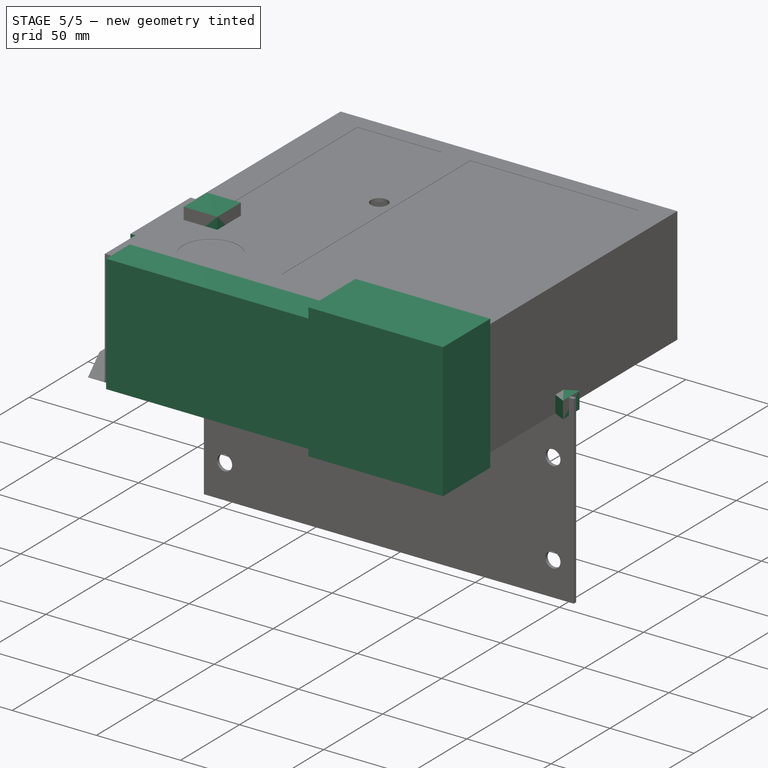
[diagram: stage 5 of 5 — iso view after this stage's code; geometry added in this stage tinted green]
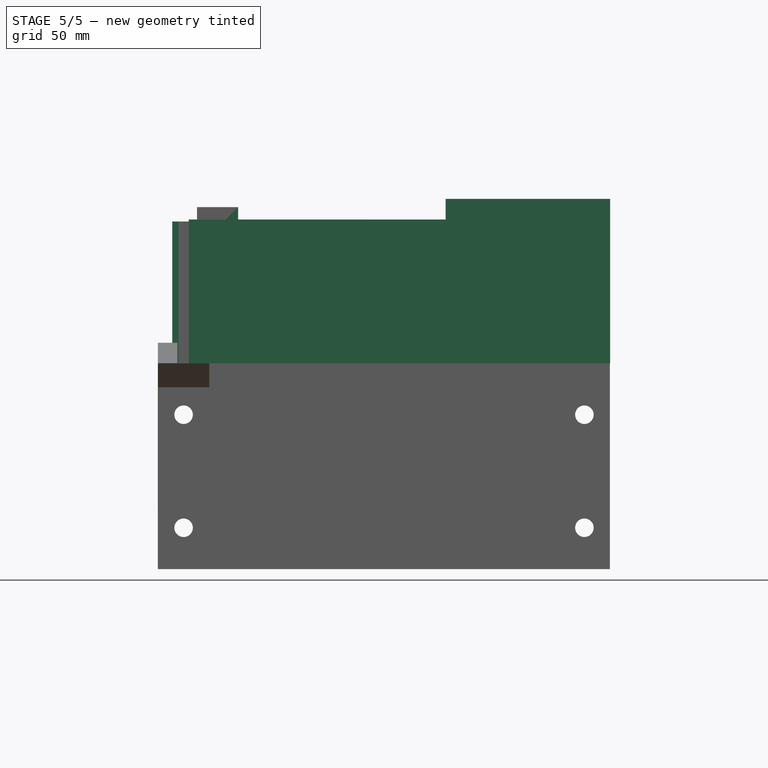
[diagram: stage 5 of 5 — front view after this stage's code; geometry added in this stage tinted green]
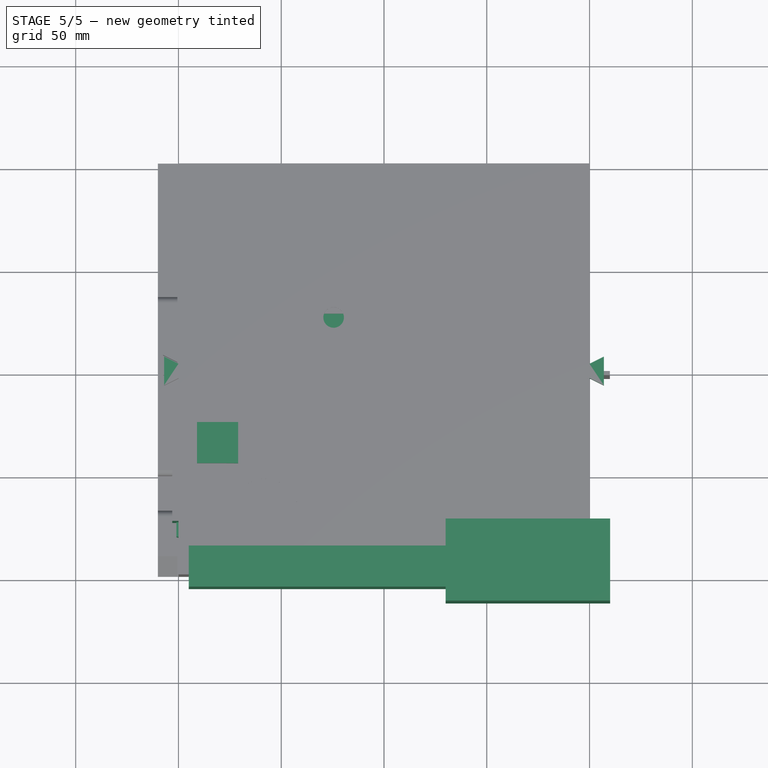
[diagram: stage 5 of 5 — top view after this stage's code; geometry added in this stage tinted green]
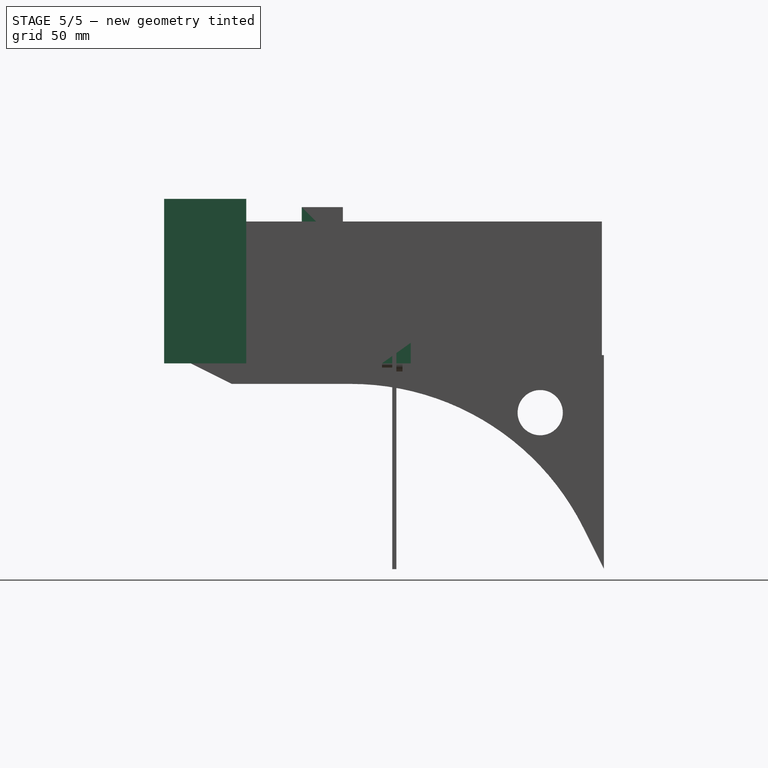
[diagram: stage 5 of 5 — right view after this stage's code; geometry added in this stage tinted green]
FEATURE [Sketcher::SketchObject] Sketch059
  ExternalGeometry = -> [Pad032]
  FullyConstrained = true
  MapMode = 5
  Placement = pos=(0,-98,0) rot=(1,0,0;1.5708rad)
  Support = -> [Pad032]
  sketch-geometry (4):
    g0: LineSegment StartX=17.5 StartY=54.5 StartZ=0 EndX=28.5 EndY=54.5 EndZ=0
    g1: LineSegment StartX=28.5 StartY=54.5 StartZ=0 EndX=28.5 EndY=40.8 EndZ=0
    g2: LineSegment StartX=28.5 StartY=40.8 StartZ=0 EndX=17.5 EndY=40.8 EndZ=0
    g3: LineSegment StartX=17.5 StartY=40.8 StartZ=0 EndX=17.5 EndY=54.5 EndZ=0
  constraints (10):
    c: Coincident(g0,g1)
    c: Coincident(g1,g2)
    c: Coincident(g2,g3)
    c: Coincident(g3,g0)
    c: Horizontal(g0)
    c: Horizontal(g2)
    c: Vertical(g1)
    c: Vertical(g3)
    c: Coincident(g0,g-4)
    c: Coincident(g1,g-3)
FEATURE [PartDesign::Pocket] Pocket016  label="bme280-3"
  BaseFeature = -> Pad032
  Direction = (1,1,1)
  Length = 2
  Length2 = 100
  Profile = -> Sketch059
  Type = 0
FEATURE [Sketcher::SketchObject] Sketch060
  ExternalGeometry = -> [Pocket016]
  FullyConstrained = true
  MapMode = 5
  Placement = pos=(0,-96,0) rot=(1,0,0;1.5708rad)
  Support = -> [Pocket016]
  sketch-geometry (4):
    g0: LineSegment StartX=17.5 StartY=54.5 StartZ=0 EndX=28.5 EndY=54.5 EndZ=0
    g1: LineSegment StartX=28.5 StartY=54.5 StartZ=0 EndX=28.5 EndY=49.5 EndZ=0
    g2: LineSegment StartX=28.5 StartY=49.5 StartZ=0 EndX=17.5 EndY=49.5 EndZ=0
    g3: LineSegment StartX=17.5 StartY=49.5 StartZ=0 EndX=17.5 EndY=54.5 EndZ=0
  constraints (11):
    c: Coincident(g0,g1)
    c: Coincident(g1,g2)
    c: Coincident(g2,g3)
    c: Coincident(g3,g0)
    c: Horizontal(g0)
    c: Horizontal(g2)
    c: Vertical(g1)
    c: Vertical(g3)
    c: Coincident(g0,g-3)
    c: PointOnObject(g1,g-4)
    c: DistanceY(g1,g1) = 5
FEATURE [PartDesign::Pocket] Pocket017  label="bme280-4"
  BaseFeature = -> Pocket016
  Direction = (1,1,1)
  Length = 15
  Length2 = 100
  Profile = -> Sketch060
  Type = 0
FEATURE [Sketcher::SketchObject] Sketch061
  ExternalGeometry = -> [Pocket017]
  FullyConstrained = true
  MapMode = 5
  Placement = pos=(0,-92,0) rot=(0,0.707107,0.707107;3.14159rad)
  Support = -> [Pocket017]
  sketch-geometry (16):
    g0: LineSegment StartX=-8.5 StartY=6.5 StartZ=0 EndX=-8.5 EndY=0 EndZ=0
    g1: LineSegment StartX=-8.5 StartY=0 StartZ=0 EndX=-2.5 EndY=0 EndZ=0
    g2: LineSegment StartX=-2.5 StartY=0 StartZ=0 EndX=-2.5 EndY=6.49998 EndZ=0
    g3: ArcOfCircle CenterX=-5.5 CenterY=6.5 CenterZ=0 NormalX=0 NormalY=0 NormalZ=1 AngleXU=0 Radius=3 StartAngle=3.14159 EndAngle=6.28318
    g4: LineSegment StartX=84.5 StartY=6.50002 StartZ=0 EndX=84.5 EndY=0 EndZ=0
    g5: LineSegment StartX=84.5 StartY=0 StartZ=0 EndX=90.5 EndY=0 EndZ=0
    g6: LineSegment StartX=90.5 StartY=0 StartZ=0 EndX=90.5 EndY=6.49998 EndZ=0
    g7: ArcOfCircle CenterX=87.5 CenterY=6.5 CenterZ=0 NormalX=0 NormalY=0 NormalZ=1 AngleXU=0 Radius=3 StartAngle=3.14159 EndAngle=6.28318
    g8: LineSegment StartX=84.5 StartY=62.5 StartZ=0 EndX=84.5 EndY=55.5 EndZ=0
    g9: LineSegment StartX=84.5 StartY=55.5 StartZ=0 EndX=90.5 EndY=55.5 EndZ=0
    g10: LineSegment StartX=90.5 StartY=55.5 StartZ=0 EndX=90.5 EndY=62.5 EndZ=0
    g11: ArcOfCircle CenterX=87.5 CenterY=62.5 CenterZ=0 NormalX=0 NormalY=0 NormalZ=1 AngleXU=0 Radius=3 StartAngle=3.1416 EndAngle=6.28319
    g12: LineSegment StartX=-8.5 StartY=62.5 StartZ=0 EndX=-8.5 EndY=55.5 EndZ=0
    g13: LineSegment StartX=-8.5 StartY=55.5 StartZ=0 EndX=-2.5 EndY=55.5 EndZ=0
    g14: LineSegment StartX=-2.5 StartY=55.5 StartZ=0 EndX=-2.5 EndY=62.5 EndZ=0
    g15: ArcOfCircle CenterX=-5.5 CenterY=62.5 CenterZ=0 NormalX=0 NormalY=0 NormalZ=1 AngleXU=0 Radius=3 StartAngle=3.1416 EndAngle=6.28319
  constraints (48):
    c: PointOnObject(g0,g-1)
    c: Vertical(g0)
    c: Coincident(g0,g1)
    c: Horizontal(g1)
    c: Coincident(g2,g1)
    c: Vertical(g2)
    c: Coincident(g0,g3)
    c: Coincident(g3,g2)
    c: Coincident(g3,g-3)
    c: PointOnObject(g0,g-3)
    c: Tangent(g-3,g0,g0) = -1.5708
    c: Tangent(g-3,g2)
    c: PointOnObject(g4,g-1)
    c: Vertical(g4)
    c: Coincident(g5,g4)
    c: PointOnObject(g5,g-1)
    c: Coincident(g6,g5)
    c: Vertical(g6)
    c: Coincident(g4,g7)
    c: Coincident(g6,g7)
    c: Coincident(g7,g-4)
    c: Tangent(g4,g-4)
    c: Tangent(g6,g-4)
    c: PointOnObject(g6,g-4)
    c: Vertical(g8)
    c: Coincident(g9,g8)
    c: Horizontal(g9)
    c: Coincident(g10,g9)
    c: Vertical(g10)
    c: Coincident(g11,g-5)
    c: Coincident(g11,g8)
    c: Coincident(g11,g10)
    c: Tangent(g8,g-5)
    c: Tangent(g10,g-5)
    c: PointOnObject(g10,g-5)
    c: DistanceY(g10,g10) = 7
    c: Vertical(g12)
    c: Coincident(g12,g13)
    c: Horizontal(g13)
    c: Coincident(g13,g14)
    c: Vertical(g14)
    c: Coincident(g15,g12)
    c: Coincident(g-6,g15)
    c: Coincident(g14,g15)
    c: Tangent(g12,g-6)
    c: Tangent(g14,g-6)
    c: PointOnObject(g14,g-6)
    c: Equal(g8,g14)
FEATURE [PartDesign::Pad] Pad033  label="window-support-1"
  BaseFeature = -> Pocket017
  Direction = (1,1,1)
  Length = 6
  Length2 = 100
  Profile = -> Sketch061
  Reversed = true
  Type = 0
FEATURE [Sketcher::SketchObject] Sketch062
  ExternalGeometry = -> [Pad033]
  FullyConstrained = true
  MapMode = 5
  Placement = pos=(-90.5,0,0) rot=(0.57735,-0.57735,-0.57735;2.0944rad)
  Support = -> [Pad033]
  sketch-geometry (3):
    g0: LineSegment StartX=92 StartY=60.5 StartZ=0 EndX=98 EndY=55.5 EndZ=0
    g1: LineSegment StartX=98 StartY=55.5 StartZ=0 EndX=92 EndY=55.5 EndZ=0
    g2: LineSegment StartX=92 StartY=55.5 StartZ=0 EndX=92 EndY=60.5 EndZ=0
  constraints (9):
    c: Coincident(g0,g1)
    c: Horizontal(g1)
    c: Coincident(g1,g2)
    c: Coincident(g2,g0)
    c: Vertical(g2)
    c: Coincident(g0,g-3)
    c: PointOnObject(g0,g-4)
    c: DistanceY(g2,g2) = 5
    c: Angle(g2,g0) = 0.876058
FEATURE [PartDesign::Pocket] Pocket018  label="window-support-2"
  BaseFeature = -> Pad033
  Direction = (1,1,1)
  Length = 100
  Length2 = 100
  Profile = -> Sketch062
  Type = 0
FEATURE [Sketcher::SketchObject] Sketch063
  ExternalGeometry = -> [Pocket018]
  FullyConstrained = true
  MapMode = 5
  Placement = pos=(0,98,0) rot=(1,0,0;1.5708rad)
  Support = -> [Pocket018]
  sketch-geometry (6):
    g0: LineSegment StartX=34 StartY=37 StartZ=0 EndX=34 EndY=67 EndZ=0
    g1: LineSegment StartX=-15 StartY=67 StartZ=0 EndX=-15 EndY=47 EndZ=0
    g2: LineSegment StartX=-20 StartY=67 StartZ=0 EndX=-10 EndY=67 EndZ=0
    g3: LineSegment StartX=-10 StartY=67 StartZ=0 EndX=-10 EndY=47 EndZ=0
    g4: LineSegment StartX=-10 StartY=47 StartZ=0 EndX=-20 EndY=47 EndZ=0
    g5: LineSegment StartX=-20 StartY=47 StartZ=0 EndX=-20 EndY=67 EndZ=0
  constraints (17):
    c: Coincident(g0,g-4)
    c: PointOnObject(g0,g-3)
    c: Vertical(g0)
    c: Vertical(g1)
    c: Symmetric(g-3,g0,g1)
    c: Coincident(g2,g3)
    c: Coincident(g3,g4)
    c: Coincident(g4,g5)
    c: Coincident(g5,g2)
    c: Horizontal(g2)
    c: Horizontal(g4)
    c: Vertical(g3)
    c: Vertical(g5)
    c: PointOnObject(g2,g-3)
    c: Symmetric(g4,g3,g1)
    c: DistanceX(g2,g2) = 10
    c: DistanceY(g3,g3) = 20
FEATURE [PartDesign::Pad] Pad034  label="cilicogel-direction-1"
  BaseFeature = -> Pocket018
  Direction = (1,1,1)
  Length = 2
  Length2 = 100
  Profile = -> Sketch063
  Type = 0
FEATURE [Sketcher::SketchObject] Sketch064
  ExternalGeometry = -> [Pad034]
  FullyConstrained = true
  MapMode = 5
  Placement = pos=(36,0,0) rot=(0.57735,0.57735,0.57735;2.0944rad)
  Support = -> [Pad034]
  sketch-geometry (6):
    g0: LineSegment StartX=34 StartY=37 StartZ=0 EndX=34 EndY=67 EndZ=0
    g1: LineSegment StartX=-15 StartY=67 StartZ=0 EndX=-15 EndY=47 EndZ=0
    g2: LineSegment StartX=-20 StartY=67 StartZ=0 EndX=-10 EndY=67 EndZ=0
    g3: LineSegment StartX=-10 StartY=67 StartZ=0 EndX=-10 EndY=47 EndZ=0
    g4: LineSegment StartX=-10 StartY=47 StartZ=0 EndX=-20 EndY=47 EndZ=0
    g5: LineSegment StartX=-20 StartY=47 StartZ=0 EndX=-20 EndY=67 EndZ=0
  constraints (17):
    c: Coincident(g0,g-3)
    c: Vertical(g0)
    c: PointOnObject(g0,g-4)
    c: Vertical(g1)
    c: Symmetric(g-4,g0,g1)
    c: Coincident(g2,g3)
    c: Coincident(g3,g4)
    c: Coincident(g4,g5)
    c: Coincident(g5,g2)
    c: Horizontal(g2)
    c: Horizontal(g4)
    c: Vertical(g3)
    c: Vertical(g5)
    c: PointOnObject(g2,g-4)
    c: Symmetric(g4,g3,g1)
    c: DistanceX(g2,g2) = 10
    c: DistanceY(g3,g3) = 20
FEATURE [PartDesign::Pad] Pad035  label="cilicogel-direction-2"
  BaseFeature = -> Pad034
  Direction = (1,1,1)
  Length = 2
  Length2 = 100
  Profile = -> Sketch064
  Type = 0
FEATURE [PartDesign::Chamfer] Chamfer004  label="cilicogel-direction-3"
  Angle = 45
  Base = -> Pad035 [Edge302,Edge366]
  BaseFeature = -> Pad035
  ChamferType = 0
  FlipDirection = false
  Size = 1.9
  Size2 = 1
  SupportTransform = false
  UseAllEdges = false
FEATURE [Part::Box] Box  label="filter-light-sensor"
  AttacherType = Attacher::AttachEngine3D
  Height = 20
  Length = 20
  Placement = pos=(-91,-46,56) rot=(0,0,1;0rad)
  Width = 20
FEATURE [Part::Box] Box001  label="filter-display-panel"
  AttacherType = Attacher::AttachEngine3D
  Height = 70
  Length = 130
  Placement = pos=(-95,-106,0) rot=(0,0,1;0rad)
  Width = 20
FEATURE [Part::Box] Box002  label="filter-capacitor"
  AttacherType = Attacher::AttachEngine3D
  Height = 40
  Length = 40
  Placement = pos=(-49,-7,0) rot=(0,0,1;0rad)
  Width = 40
FEATURE [Part::Box] Box003  label="filter-logic-block"
  AttacherType = Attacher::AttachEngine3D
  Height = 30
  Length = 55
  Placement = pos=(-101,-81,0) rot=(0,0,1;0rad)
  Width = 57
FEATURE [Part::Box] Box004  label="filter-supply-block"
  AttacherType = Attacher::AttachEngine3D
  Height = 10
  Length = 65
  Placement = pos=(-43,-83,0) rot=(0,0,1;0rad)
  Width = 75
FEATURE [Sketcher::SketchObject] Sketch069
  FullyConstrained = false
  MapMode = 5
  Placement = pos=(36,0,0) rot=(0.57735,0.57735,0.57735;2.0944rad)
  sketch-geometry (4):
    g0: LineSegment StartX=-88 StartY=34 StartZ=0 EndX=-81 EndY=34 EndZ=0
    g1: LineSegment StartX=-81 StartY=34 StartZ=0 EndX=-81 EndY=41 EndZ=0
    g2: LineSegment StartX=-81 StartY=41 StartZ=0 EndX=-88 EndY=41 EndZ=0
    g3: LineSegment StartX=-88 StartY=41 StartZ=0 EndX=-88 EndY=34 EndZ=0
  constraints (10):
    c: Coincident(g0,g1)
    c: Coincident(g1,g2)
    c: Coincident(g2,g3)
    c: Coincident(g3,g0)
    c: Horizontal(g0)
    c: Horizontal(g2)
    c: Vertical(g1)
    c: Vertical(g3)
    c: DistanceX(g0,g0) = 7
    c: Equal(g3,g0)
FEATURE [PartDesign::Pocket] Pocket023  label="fan-wire-2"
  BaseFeature = -> Chamfer004
  Direction = (1,1,1)
  Length = 5
  Length2 = 100
  Profile = -> Sketch069
  Type = 0
FEATURE [Part::Box] Box005  label="filter-fan"
  AttacherType = Attacher::AttachEngine3D
  Height = 80
  Length = 80
  Placement = pos=(30,-113,0) rot=(0,0,1;0rad)
  Width = 40
FEATURE [Sketcher::SketchObject] Sketch070
  ExternalGeometry = -> [Pocket023]
  FullyConstrained = true
  MapMode = 5
  Placement = pos=(-100,0,0) rot=(0.57735,-0.57735,-0.57735;2.0944rad)
  Support = -> [Pocket023]
  sketch-geometry (13):
    g0: Circle CenterX=36 CenterY=57 CenterZ=0 NormalX=0 NormalY=0 NormalZ=1 AngleXU=0 Radius=6
    g1: Circle CenterX=56 CenterY=57 CenterZ=0 NormalX=0 NormalY=0 NormalZ=1 AngleXU=0 Radius=6
    g2: LineSegment StartX=-24 StartY=20 StartZ=0 EndX=26 EndY=20 EndZ=0
    g3: LineSegment StartX=-24 StartY=20 StartZ=0 EndX=-24 EndY=45 EndZ=0
    g4: LineSegment StartX=-24 StartY=45 StartZ=0 EndX=26 EndY=45 EndZ=0
    g5: LineSegment StartX=26 StartY=45 StartZ=0 EndX=26 EndY=20 EndZ=0
    g6: LineSegment StartX=1 StartY=51 StartZ=0 EndX=26 EndY=51 EndZ=0
    g7: Circle CenterX=36 CenterY=57 CenterZ=0 NormalX=0 NormalY=0 NormalZ=1 AngleXU=0 Radius=8.5
    g8: Circle CenterX=56 CenterY=57 CenterZ=0 NormalX=0 NormalY=0 NormalZ=1 AngleXU=0 Radius=8.5
    g9: LineSegment StartX=-24 StartY=45 StartZ=0 EndX=-14 EndY=45 EndZ=0
    g10: LineSegment StartX=-14 StartY=45 StartZ=0 EndX=-14 EndY=20 EndZ=0
    g11: LineSegment StartX=-14 StartY=20 StartZ=0 EndX=-24 EndY=20 EndZ=0
    g12: LineSegment StartX=-24 StartY=20 StartZ=0 EndX=-24 EndY=45 EndZ=0
  constraints (39):
    c: Diameter(g0) = 12
    c: Diameter(g1) = 12
    c: DistanceX(g0,g1) = 20
    c: DistanceX(g-3,g0) = 70
    c: DistanceY(g1,g0) = 0
    c: DistanceY(g-3,g0) = -10
    c: Horizontal(g2)
    c: DistanceY(g-1,g2) = 20
    c: DistanceX(g2,g2) = 50
    c: Coincident(g3,g2)
    c: Vertical(g3)
    c: Coincident(g4,g3)
    c: Horizontal(g4)
    c: Coincident(g5,g4)
    c: Coincident(g5,g2)
    c: Vertical(g5)
    c: DistanceY(g5,g5) = 25
    c: Horizontal(g6)
    c: Tangent(g6,g1)
    c: DistanceX(g6,g6) = 25
    c: DistanceY(g4,g6) = 6
    c: PointOnObject(g6,g5)
    c: DistanceX(g-3,g2) = 10
    c: Coincident(g7,g0)
    c: Coincident(g8,g1)
    c: Diameter(g7) = 17
    c: Diameter(g8) = 17
    c: Coincident(g9,g10)
    c: Coincident(g10,g11)
    c: Coincident(g11,g12)
    c: Coincident(g12,g9)
    c: Horizontal(g9)
    c: Horizontal(g11)
    c: Vertical(g10)
    c: Vertical(g12)
    c: Coincident(g9,g3)
    c: PointOnObject(g10,g2)
    c: DistanceX(g3,g9) = 10
    c: DistanceX(g1,g-4) = 44
FEATURE [PartDesign::Pocket] Pocket024  label="external-conntectors"
  BaseFeature = -> Pocket023
  Direction = (1,1,1)
  Length = 5
  Length2 = 100
  Profile = -> Sketch070
  Type = 0
FEATURE [Part::Box] Box006  label="filter-external-connector"
  AttacherType = Attacher::AttachEngine3D
  Height = 69
  Length = 21
  Placement = pos=(-103,-74,0) rot=(0,0,1;0rad)
  Width = 51
FEATURE [Sketcher::SketchObject] Sketch071
  ExternalGeometry = -> [Pocket024]
  FullyConstrained = true
  MapMode = 5
  Support = -> [XY_Plane]
  sketch-geometry (8):
    g0: LineSegment StartX=100 StartY=3.5 StartZ=0 EndX=107 EndY=7 EndZ=0
    g1: LineSegment StartX=107 StartY=7 StartZ=0 EndX=107 EndY=-7 EndZ=0
    g2: LineSegment StartX=107 StartY=-7 StartZ=0 EndX=100 EndY=-3.5 EndZ=0
    g3: LineSegment StartX=100 StartY=-3.5 StartZ=0 EndX=100 EndY=3.5 EndZ=0
    g4: LineSegment StartX=-100 StartY=3.5 StartZ=0 EndX=-107 EndY=7 EndZ=0
    g5: LineSegment StartX=-107 StartY=7 StartZ=0 EndX=-107 EndY=-7 EndZ=0
    g6: LineSegment StartX=-107 StartY=-7 StartZ=0 EndX=-100 EndY=-3.5 EndZ=0
    g7: LineSegment StartX=-100 StartY=3.5 StartZ=0 EndX=-100 EndY=-3.5 EndZ=0
  constraints (22):
    c: Coincident(g0,g1)
    c: Vertical(g1)
    c: Coincident(g1,g2)
    c: DistanceX(g0,g0) = 7
    c: Equal(g0,g2)
    c: DistanceY(g1,g1) = 14
    c: Coincident(g4,g5)
    c: Vertical(g5)
    c: Coincident(g5,g6)
    c: Coincident(g7,g4)
    c: Coincident(g7,g6)
    c: Vertical(g7)
    c: Equal(g1,g5)
    c: Equal(g3,g7)
    c: Equal(g0,g4)
    c: Equal(g4,g6)
    c: Symmetric(g2,g4,g-1)
    c: Coincident(g3,g0)
    c: Coincident(g3,g2)
    c: PointOnObject(g0,g-6)
    c: Symmetric(g2,g0,g-1)
    c: DistanceY(g3,g3) = 7
FEATURE [PartDesign::Pad] Pad036  label="legs-holder"
  BaseFeature = -> Pocket024
  Direction = (1,1,1)
  Length = 10
  Length2 = 100
  Profile = -> Sketch071
  Type = 0
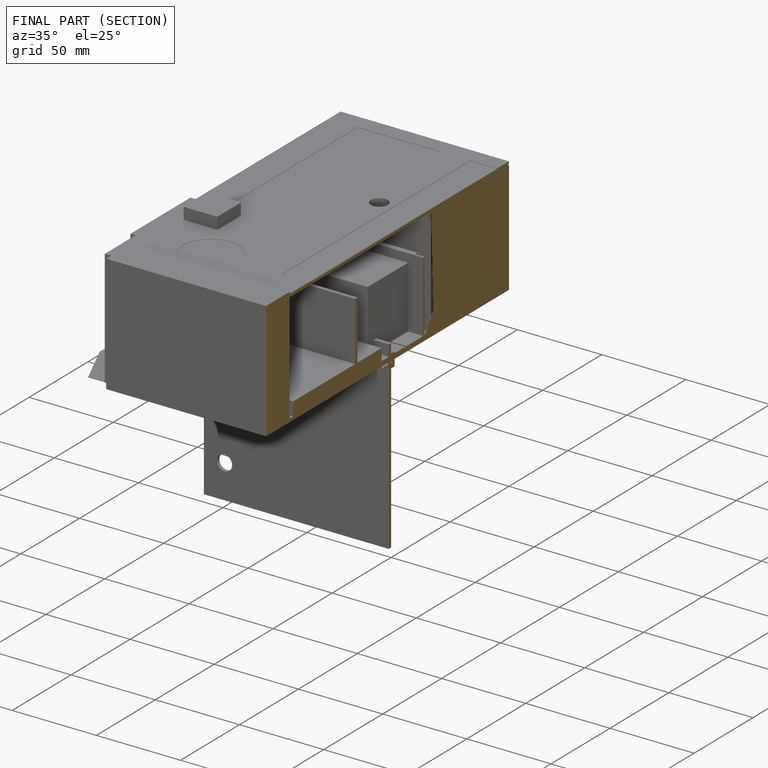
[diagram: finished part — half-section view (interior)]
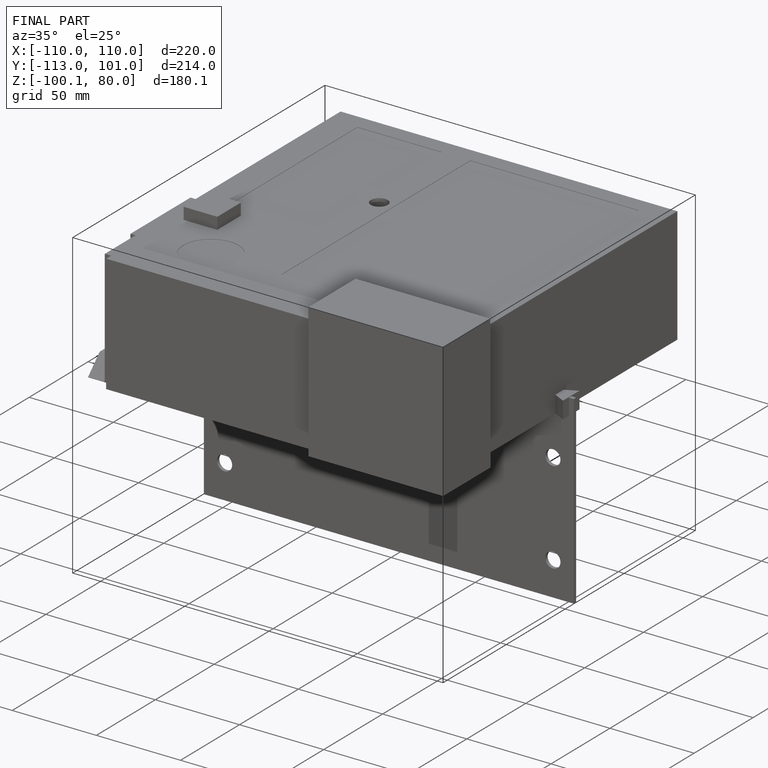
[diagram: finished part — iso view with bounding-box wireframe]
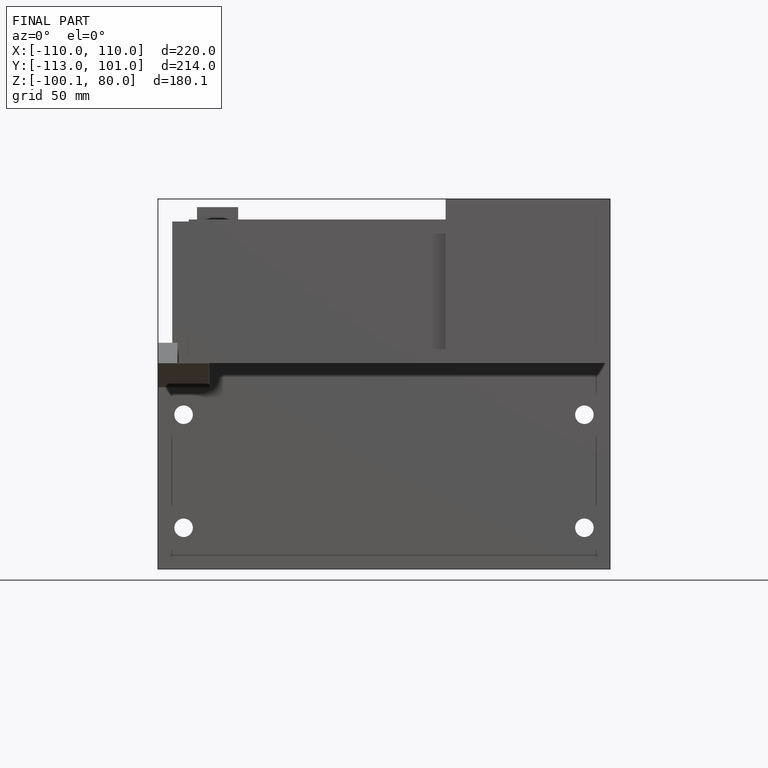
[diagram: finished part — front view with bounding-box wireframe]
